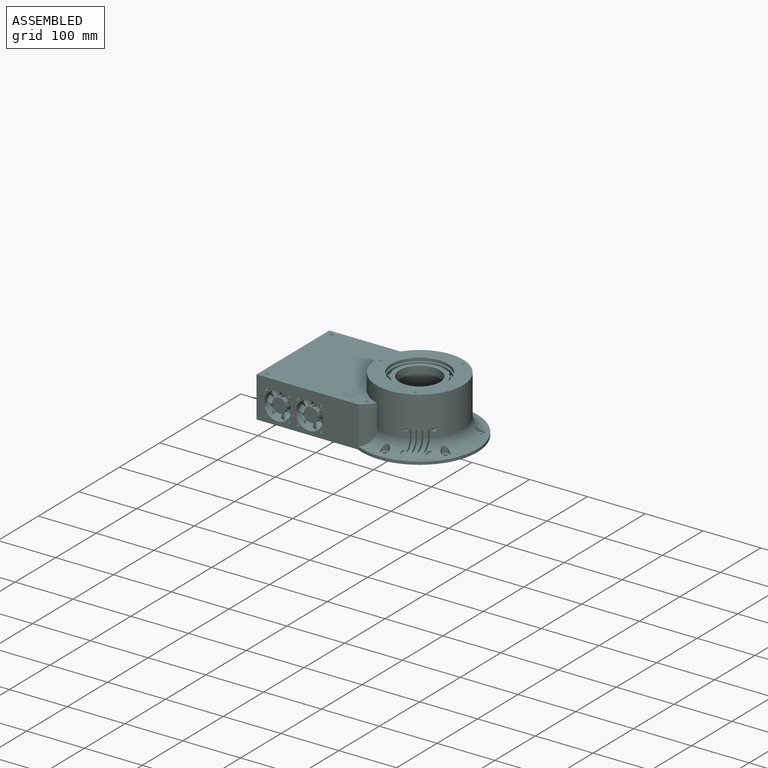
[diagram: assembled view]
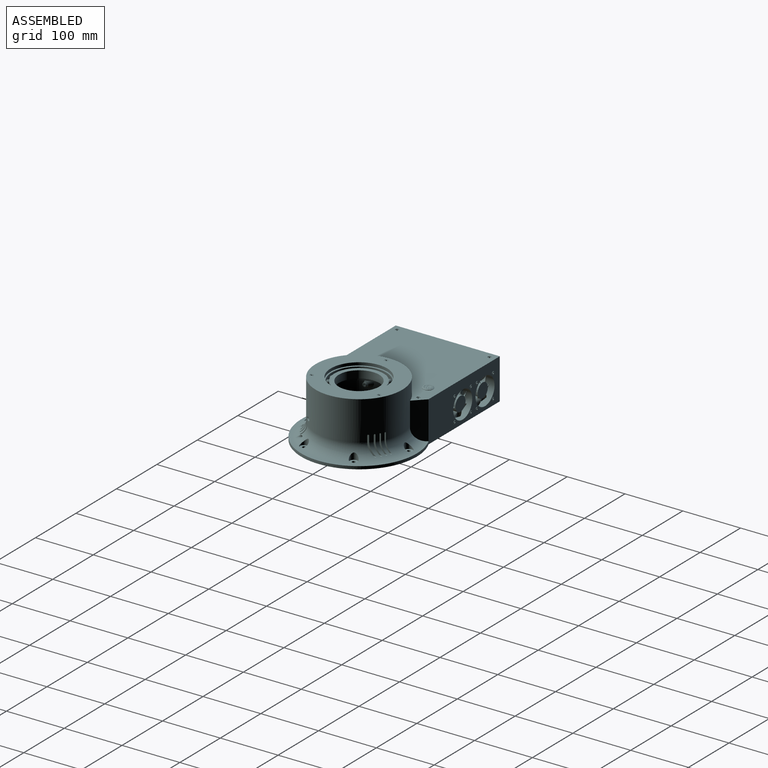
[diagram: assembled view, second angle]
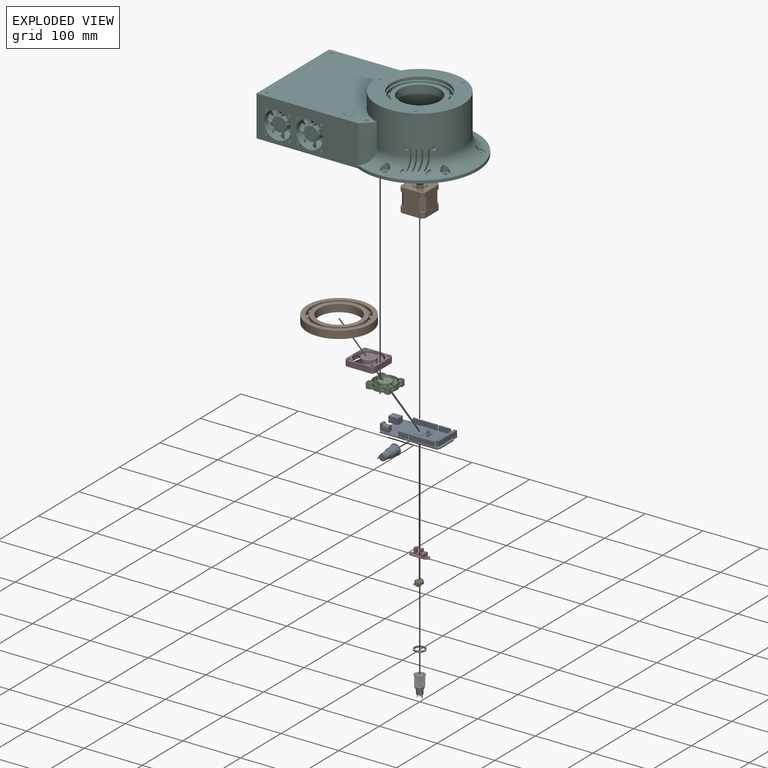
[diagram: exploded view]
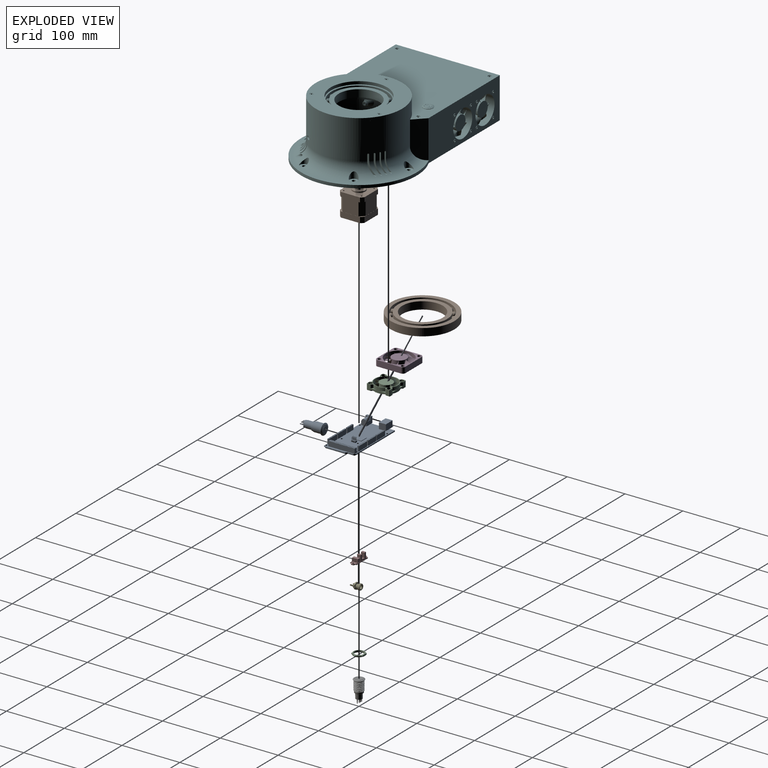
[diagram: exploded view, second angle]
FCSTD DOCUMENT  (FreeCAD 0.19R24276 (Git))
Label: AssemblyBase
License: All rights reserved
LicenseURL: http://en.wikipedia.org/wiki/All_rights_reserved
objects: Part::FeaturePython×83, PartDesign::CoordinateSystem×20, App::Link×20, PartDesign::Line×16, Part::Feature×15, App::Part×11, App::DocumentObjectGroup×6, Part::Compound×3, Sketcher::SketchObject×2, PartDesign::Pad×2, Part::Sphere×1, App::FeaturePython×1
note: 144 computed B-rep shape members (.brp) not serialized (recipe doc carries the construction recipe, not evaluated geometry)
EXTERNAL_REF file=BaseBot.FCStd obj=LCS_Bot
EXTERNAL_REF file=BaseBot.FCStd obj=Body002
EXTERNAL_REF file=BaseBot.FCStd obj=LCS_Top001
EXTERNAL_REF file=BaseTop.FCStd obj=LCS_Bot
EXTERNAL_REF file=BaseTop.FCStd obj=Body
EXTERNAL_REF file=BaseBearingFix.FCStd obj=LCS_Bot
EXTERNAL_REF file=BaseTop.FCStd obj=LCS_Top
EXTERNAL_REF file=BaseBearingFix.FCStd obj=Body
EXTERNAL_REF file=BaseBoxBody.FCStd obj=LCS_Bot
EXTERNAL_REF file=BaseBoxBody.FCStd obj=Body002
EXTERNAL_REF file=BaseBoxBody.FCStd obj=LCS_Top
EXTERNAL_REF file=BaseBoxCover.FCStd obj=LCS_Bot
EXTERNAL_REF file=BaseBoxCover.FCStd obj=Body
EXTERNAL_REF file=BaseBot.FCStd obj=LCS_Stepper
EXTERNAL_REF file=Art1GearMotor.FCStd obj=LCS_Art1GearMotor
EXTERNAL_REF file=Art1GearMotor.FCStd obj=Body
EXTERNAL_REF file=BaseBot.FCStd obj=LCS_OpticSensor
EXTERNAL_REF file=BaseBot.FCStd obj=LCS_Fan001
EXTERNAL_REF file=BaseBoxCover.FCStd obj=LCS_PushButton1
EXTERNAL_REF file=BaseBoxCover.FCStd obj=LCS_PushButton2
EXTERNAL_REF file=BaseBoxBody.FCStd obj=LCS_Fan1
EXTERNAL_REF file=BaseBoxBody.FCStd obj=LCS_Fan2
EXTERNAL_REF file=BaseBoxBody.FCStd obj=LCS_Fan3
EXTERNAL_REF file=BaseBoxBody.FCStd obj=LCS_Fan4
EXTERNAL_REF file=BaseBoxBody.FCStd obj=LCS_Arduino
EXTERNAL_REF file=BaseBoxBody.FCStd obj=LCS_DCJAck
EXTERNAL_REF file=BaseBoxBody.FCStd obj=HoleAxis_15
EXTERNAL_REF file=BaseBoxBody.FCStd obj=HoleAxis_18
EXTERNAL_REF file=BaseBoxBody.FCStd obj=HoleAxis_16
EXTERNAL_REF file=BaseBoxBody.FCStd obj=HoleAxis_17
EXTERNAL_REF file=BaseBoxBody.FCStd obj=HoleAxis_19
EXTERNAL_REF file=BaseBoxBody.FCStd obj=HoleAxis_20
EXTERNAL_REF file=BaseBoxBody.FCStd obj=HoleAxis_22
EXTERNAL_REF file=BaseBoxBody.FCStd obj=HoleAxis_21
EXTERNAL_REF file=BaseBoxBody.FCStd obj=HoleAxis_14
EXTERNAL_REF file=BaseBoxBody.FCStd obj=HoleAxis_13
EXTERNAL_REF file=BaseBoxBody.FCStd obj=HoleAxis_8
EXTERNAL_REF file=BaseBoxBody.FCStd obj=HoleAxis_7
EXTERNAL_REF file=BaseBoxBody.FCStd obj=HoleAxis_9
EXTERNAL_REF file=BaseBoxBody.FCStd obj=HoleAxis_10
EXTERNAL_REF file=BaseBoxBody.FCStd obj=HoleAxis_12
EXTERNAL_REF file=BaseBoxBody.FCStd obj=HoleAxis_11
EXTERNAL_REF file=BaseBoxBody.FCStd obj=HoleAxis_28
EXTERNAL_REF file=BaseBoxBody.FCStd obj=HoleAxis_27
EXTERNAL_REF file=BaseBoxBody.FCStd obj=HoleAxis_26
EXTERNAL_REF file=BaseBoxBody.FCStd obj=HoleAxis_25
EXTERNAL_REF file=BaseBoxBody.FCStd obj=HoleAxis_24
EXTERNAL_REF file=BaseBoxBody.FCStd obj=HoleAxis_23
EXTERNAL_REF file=BaseBoxBody.FCStd obj=HoleAxis_1
EXTERNAL_REF file=BaseBoxBody.FCStd obj=HoleAxis_6
EXTERNAL_REF file=BaseBoxCover.FCStd obj=HoleAxis_2
EXTERNAL_REF file=BaseBoxCover.FCStd obj=HoleAxis_3
EXTERNAL_REF file=BaseBoxCover.FCStd obj=HoleAxis_4
EXTERNAL_REF file=BaseBoxCover.FCStd obj=HoleAxis_1
EXTERNAL_REF file=BaseBoxBody.FCStd obj=HoleAxis_2
EXTERNAL_REF file=BaseBoxBody.FCStd obj=HoleAxis_3
EXTERNAL_REF file=BaseBoxBody.FCStd obj=HoleAxis_4
EXTERNAL_REF file=BaseBoxBody.FCStd obj=HoleAxis_5
EXTERNAL_REF file=BaseBot.FCStd obj=HoleAxis_2
EXTERNAL_REF file=BaseBot.FCStd obj=HoleAxis_3
EXTERNAL_REF file=BaseBot.FCStd obj=HoleAxis_4
EXTERNAL_REF file=BaseBot.FCStd obj=HoleAxis_1
EXTERNAL_REF file=BaseBot.FCStd obj=HoleAxis_13
EXTERNAL_REF file=BaseBot.FCStd obj=HoleAxis_12
EXTERNAL_REF file=BaseBot.FCStd obj=HoleAxis_11
EXTERNAL_REF file=BaseBot.FCStd obj=HoleAxis_9
EXTERNAL_REF file=BaseBot.FCStd obj=HoleAxis_10
EXTERNAL_REF file=Art1GearMotor.FCStd obj=HoleAxis_2
EXTERNAL_REF file=Art1GearMotor.FCStd obj=HoleAxis_1
EXTERNAL_REF file=BaseBearingFix.FCStd obj=HoleAxis_2
EXTERNAL_REF file=BaseBot.FCStd obj=HoleAxis_6
EXTERNAL_REF file=BaseBot.FCStd obj=HoleAxis_7
EXTERNAL_REF file=BaseBot.FCStd obj=HoleAxis_5
EXTERNAL_REF file=BaseBot.FCStd obj=HoleAxis_8
EXTERNAL_REF file=BaseBot.FCStd obj=HoleAxis_14
EXTERNAL_REF file=BaseBot.FCStd obj=HoleAxis_15
EXTERNAL_REF file=BaseBot.FCStd obj=HoleAxis_16
EXTERNAL_REF file=BaseBot.FCStd obj=HoleAxis_17
EXTERNAL_REF file=BaseBearingFix.FCStd obj=HoleAxis_3
EXTERNAL_REF file=BaseBearingFix.FCStd obj=HoleAxis_1

FEATURE [Part::Feature] Clone002001  label="fan-50x50mm"
FEATURE [PartDesign::CoordinateSystem] LCS_0
  AttacherType = Attacher::AttachEngine3D
  MapMode = 2
  Support = -> [X_Axis001]
FEATURE [PartDesign::CoordinateSystem] LCS_Fan
  AttacherType = Attacher::AttachEngine3D
  MapMode = 45
  Placement = pos=(0,0,10) rot=(0,0,1;0rad)
  Support = -> [Clone002001]
FEATURE [PartDesign::CoordinateSystem] LCS_0001
  AttacherType = Attacher::AttachEngine3D
  MapMode = 2
  Support = -> [X_Axis002]
FEATURE [Part::Feature] Part__Feature001  label="fan-40x40mm"
FEATURE [PartDesign::CoordinateSystem] LCS_Fan001
  AttacherType = Attacher::AttachEngine3D
  AttachmentOffset = pos=(0,0,-2.21) rot=(0,0,1;0rad)
  MapMode = 45
  Placement = pos=(-5e-16,5e-16,-4e-16) rot=(0,0,1;0rad)
  Support = -> [Part__Feature001]
FEATURE [PartDesign::CoordinateSystem] LCS_0002
  AttacherType = Attacher::AttachEngine3D
  MapMode = 2
  Support = -> [X_Axis003]
FEATURE [Part::Feature] Part__Feature020  label="Metal LED Illuminated Latching 16mm Power Push Button ON-OFF Switch 12V002"
FEATURE [Part::Feature] Part__Feature024  label="Metal LED Illuminated Latching 16mm Power Push Button ON-OFF Switch 12V006"
FEATURE [Part::Feature] Part__Feature021  label="Metal LED Illuminated Latching 16mm Power Push Button ON-OFF Switch 12V003"
FEATURE [Part::Feature] Part__Feature023  label="Metal LED Illuminated Latching 16mm Power Push Button ON-OFF Switch 12V005"
FEATURE [Part::Feature] Part__Feature025  label="Metal LED Illuminated Latching 16mm Power Push Button ON-OFF Switch 12V007"
FEATURE [Part::Feature] Part__Feature022  label="Metal LED Illuminated Latching 16mm Power Push Button ON-OFF Switch 12V004"
FEATURE [Part::Compound] Compound007  label="16mmOnOffButton"
  Links = -> [Part__Feature023,Part__Feature021,Part__Feature024,Part__Feature025,Part__Feature022,Part__Feature020]
FEATURE [App::Part] OnOffButton
  Group = -> [LCS_0002,Part__Feature022,Part__Feature020,Part__Feature023,Part__Feature025,Part__Feature024,Part__Feature021,Compound007]
  Origin = -> Origin003
FEATURE [PartDesign::CoordinateSystem] LCS_0003
  AttacherType = Attacher::AttachEngine3D
  MapMode = 2
  Support = -> [X_Axis004]
FEATURE [Part::Feature] Part__Feature027  label="phobya power switch body"
FEATURE [Part::Feature] Part__Feature028  label="pin power switch"
  Placement = pos=(0,-32.6,0) rot=(0,0,1;3.14159rad)
FEATURE [Part::Compound] Compound006  label="16mmPushButton"
  Links = -> [Part__Feature028,Part__Feature027]
FEATURE [App::Part] ResetButton
  Group = -> [LCS_0003,Part__Feature028,Part__Feature027,Compound006]
  Origin = -> Origin004
FEATURE [PartDesign::CoordinateSystem] LCS_0004
  AttacherType = Attacher::AttachEngine3D
  MapMode = 2
  Support = -> [X_Axis005]
FEATURE [Part::Feature] Part__Feature029  label="16mmNut"
FEATURE [PartDesign::CoordinateSystem] LCS_Washer  label="LCS_Nut"
  AttacherType = Attacher::AttachEngine3D
  MapMode = 11
  Placement = pos=(9e-16,0,1.5) rot=(0,0,1;1.5708rad)
  Support = -> [Part__Feature029]
FEATURE [App::Part] Washer  label="NutButton"
  Group = -> [LCS_0004,Part__Feature029,LCS_Washer]
  Origin = -> Origin005
FEATURE [Part::Feature] Part__Feature  label="Arduino-mega"
FEATURE [PartDesign::CoordinateSystem] LCS_0005
  AttacherType = Attacher::AttachEngine3D
  MapMode = 2
  Support = -> [X_Axis006]
FEATURE [PartDesign::CoordinateSystem] LCS_ArduinoMega
  AttacherType = Attacher::AttachEngine3D
  MapMode = 45
  Placement = pos=(3.0379,-0.047,0) rot=(0,0,1;1.53932rad)
  Support = -> [Part__Feature]
FEATURE [PartDesign::CoordinateSystem] LCS_0006
  AttacherType = Attacher::AttachEngine3D
  MapMode = 2
  Support = -> [X_Axis007]
FEATURE [Part::Feature] Part__Feature030  label="DJ Jack 2,1mm panel mount"
  Placement = pos=(0,-8,0) rot=(0,0,1;0rad)
FEATURE [App::Part] JackDC
  Group = -> [LCS_0006,Part__Feature030]
  Origin = -> Origin007
FEATURE [PartDesign::CoordinateSystem] LCS_0007
  AttacherType = Attacher::AttachEngine3D
  MapMode = 2
  Support = -> [X_Axis008]
FEATURE [Part::Feature] Fusion155  label="OptoSwitch002"
FEATURE [PartDesign::CoordinateSystem] LCS_OpticSensor
  AttacherType = Attacher::AttachEngine3D
  MapMode = 45
  Placement = pos=(7.5e-15,-1e-16,0) rot=(0,0,1;1.5708rad)
  Support = -> [Fusion155]
FEATURE [PartDesign::CoordinateSystem] LCS_0008
  AttacherType = Attacher::AttachEngine3D
  MapMode = 2
  Support = -> [X_Axis009]
FEATURE [Part::Feature] Part__Feature031  label="Nema-17-motor-40mm-final"
FEATURE [PartDesign::CoordinateSystem] LCS_Stepper_Nema17x40
  AttacherType = Attacher::AttachEngine3D
  MapMode = 45
  Placement = pos=(7.5e-15,0,0) rot=(0,0,1;0rad)
  Support = -> [Part__Feature031]
FEATURE [PartDesign::CoordinateSystem] LCS_0009
  AttacherType = Attacher::AttachEngine3D
  MapMode = 2
  Support = -> [X_Axis010]
FEATURE [Part::Sphere] Sphere
  Angle1 = -90
  Angle2 = 90
  Angle3 = 360
  AttacherType = Attacher::AttachEngine3D
  MapMode = 0
  Placement = pos=(45,0,6.5) rot=(0,0,1;0rad)
  Radius = 3.5
FEATURE [Sketcher::SketchObject] Sketch011
  AttacherType = Attacher::AttachEnginePlane
  FullyConstrained = false
  MapMode = 5
  sketch-geometry (2):
    g0: Circle CenterX=0 CenterY=0 CenterZ=0 NormalX=0 NormalY=0 NormalZ=1 AngleXU=0 Radius=55
    g1: Circle CenterX=0 CenterY=0 CenterZ=0 NormalX=0 NormalY=0 NormalZ=1 AngleXU=0 Radius=47.5
  constraints (4):
    c: Coincident(g0,g-1)
    c: Coincident(g1,g-1)
    c: Radius(g0) = 55
    c: Radius(g1) = 47.5
FEATURE [PartDesign::Pad] Pad001
  AllowMultiFace = false
  Direction = (1,1,1)
  Length = 13
  Length2 = 100
  Midplane = false
  Offset = 0
  Profile = -> Sketch011
  Refine = true
  Reversed = false
  Type = 0
  UseCustomVector = false
FEATURE [Sketcher::SketchObject] Sketch012
  AttacherType = Attacher::AttachEnginePlane
  FullyConstrained = false
  MapMode = 5
  sketch-geometry (2):
    g0: Circle CenterX=0 CenterY=0 CenterZ=0 NormalX=0 NormalY=0 NormalZ=1 AngleXU=0 Radius=35
    g1: Circle CenterX=0 CenterY=0 CenterZ=0 NormalX=0 NormalY=0 NormalZ=1 AngleXU=0 Radius=42.5
  constraints (4):
    c: Coincident(g0,g-1)
    c: Coincident(g1,g-1)
    c: Radius(g0) = 35
    c: Radius(g1) = 42.5
FEATURE [PartDesign::Pad] Pad002
  AllowMultiFace = false
  Direction = (1,1,1)
  Length = 13
  Length2 = 100
  Midplane = false
  Offset = 0
  Profile = -> Sketch012
  Refine = true
  Reversed = false
  Type = 0
  UseCustomVector = false
FEATURE [Part::FeaturePython] Array  # WARN: FeaturePython — macro-defined, semantics opaque (R4)
  Angle = 360
  ArrayType = 1
  Axis = (0,0,1)
  Base = -> Sphere
  Center = (0,0,0)
  Fuse = false
  IntervalAxis = (0,0,0)
  IntervalX = (1,0,0)
  IntervalY = (0,1,0)
  IntervalZ = (0,0,0)
  NumberPolar = 19
  NumberX = 2
  NumberY = 2
  NumberZ = 1
FEATURE [Part::Compound] Compound  label="Bearing 16014zz"
  Links = -> [Pad002,Pad001,Array]
FEATURE [App::Part] Bearing_16014zz
  Group = -> [LCS_0009,Pad002,Pad001,Sphere,Array,Sketch012,Sketch011,Compound]
  Origin = -> Origin010
FEATURE [App::DocumentObjectGroup] Group  label="Bearings"
  Group = -> [Bearing_16014zz]
FEATURE [PartDesign::CoordinateSystem] LCS_Gear2  label="LCS_Gear"
  AttacherType = Attacher::AttachEngine3D
  AttachmentOffset = pos=(0,0,1.9) rot=(0,0,1;0rad)
  MapMode = 11
  Placement = pos=(0,0,44) rot=(0,0,1;1.5708rad)
  Support = -> [Part__Feature031]
FEATURE [App::Part] Stepper_Nema17x40
  Group = -> [LCS_0008,Part__Feature031,LCS_Stepper_Nema17x40,LCS_Gear2]
  Origin = -> Origin009
FEATURE [PartDesign::Line] HoleAxis_1
  AttacherType = Attacher::AttachEngineLine
  Length = 5.07264
  MapMode = 19
  Placement = pos=(20.2,-20.2,0) rot=(0,0,1;3.14159rad)
  ResizeMode = 1
  Support = -> [Clone002001]
FEATURE [PartDesign::Line] HoleAxis_2
  AttacherType = Attacher::AttachEngineLine
  Length = 5.07264
  MapMode = 19
  Placement = pos=(-20.2,-20.2,0) rot=(0,0,1;1.5708rad)
  ResizeMode = 1
  Support = -> [Clone002001]
FEATURE [PartDesign::Line] HoleAxis_3
  AttacherType = Attacher::AttachEngineLine
  Length = 5.07264
  MapMode = 19
  Placement = pos=(-20.2,20.2,0) rot=(0,0,1;0rad)
  ResizeMode = 1
  Support = -> [Clone002001]
FEATURE [PartDesign::Line] HoleAxis_4
  AttacherType = Attacher::AttachEngineLine
  Length = 5.07264
  MapMode = 19
  Placement = pos=(20.2,20.2,0) rot=(0,0,1;4.71239rad)
  ResizeMode = 1
  Support = -> [Clone002001]
FEATURE [App::Part] Fan_50x50
  Group = -> [LCS_0,Clone002001,LCS_Fan,HoleAxis_1,HoleAxis_2,HoleAxis_3,HoleAxis_4]
  Origin = -> Origin001
FEATURE [PartDesign::Line] HoleAxis_5
  AttacherType = Attacher::AttachEngineLine
  Length = 6.05899
  MapMode = 19
  Placement = pos=(15.9948,15.9948,6.76) rot=(0,0,1;4.71239rad)
  ResizeMode = 1
  Support = -> [Part__Feature001]
FEATURE [PartDesign::Line] HoleAxis_6
  AttacherType = Attacher::AttachEngineLine
  Length = 6.05899
  MapMode = 19
  Placement = pos=(15.9948,-15.9948,6.76) rot=(0,0,1;3.14159rad)
  ResizeMode = 1
  Support = -> [Part__Feature001]
FEATURE [PartDesign::Line] HoleAxis_7
  AttacherType = Attacher::AttachEngineLine
  Length = 6.05899
  MapMode = 19
  Placement = pos=(-15.9948,-15.9948,6.76) rot=(0,0,1;1.5708rad)
  ResizeMode = 1
  Support = -> [Part__Feature001]
FEATURE [PartDesign::Line] HoleAxis_8
  AttacherType = Attacher::AttachEngineLine
  Length = 6.05899
  MapMode = 19
  Placement = pos=(-15.9948,15.9948,6.76) rot=(0,0,1;0rad)
  ResizeMode = 1
  Support = -> [Part__Feature001]
FEATURE [App::Part] Fan_40x40
  Group = -> [LCS_0001,Part__Feature001,LCS_Fan001,HoleAxis_5,HoleAxis_6,HoleAxis_7,HoleAxis_8]
  Origin = -> Origin002
FEATURE [App::DocumentObjectGroup] Group001  label="Fans"
  Group = -> [Fan_50x50,Fan_40x40]
FEATURE [PartDesign::Line] HoleAxis_9
  AttacherType = Attacher::AttachEngineLine
  Length = 4.50902
  MapMode = 19
  Placement = pos=(39.234,24.084,2) rot=(0,0,1;0rad)
  ResizeMode = 1
  Support = -> [Part__Feature]
FEATURE [PartDesign::Line] HoleAxis_10
  AttacherType = Attacher::AttachEngineLine
  Length = 4.50902
  MapMode = 19
  Placement = pos=(15.1,8.844,2) rot=(0,0,1;0rad)
  ResizeMode = 1
  Support = -> [Part__Feature]
FEATURE [PartDesign::Line] HoleAxis_11
  AttacherType = Attacher::AttachEngineLine
  Length = 4.50902
  MapMode = 19
  Placement = pos=(15.1,-19.1,2) rot=(0,0,1;0rad)
  ResizeMode = 1
  Support = -> [Part__Feature]
FEATURE [PartDesign::Line] HoleAxis_12
  AttacherType = Attacher::AttachEngineLine
  Length = 4.50902
  MapMode = 19
  Placement = pos=(-35.6964,24.084,2) rot=(0,0,1;0rad)
  ResizeMode = 1
  Support = -> [Part__Feature]
FEATURE [PartDesign::Line] HoleAxis_13
  AttacherType = Attacher::AttachEngineLine
  Length = 4.50902
  MapMode = 19
  Placement = pos=(-36.966,-24.176,2) rot=(0,0,1;0rad)
  ResizeMode = 1
  Support = -> [Part__Feature]
FEATURE [PartDesign::Line] HoleAxis_14
  AttacherType = Attacher::AttachEngineLine
  Length = 4.2272
  MapMode = 19
  Placement = pos=(-14,0,1.5) rot=(0,0,1;0rad)
  ResizeMode = 1
  Support = -> [Fusion155]
FEATURE [PartDesign::Line] HoleAxis_15
  AttacherType = Attacher::AttachEngineLine
  Length = 4.2272
  MapMode = 19
  Placement = pos=(14,0,1.5) rot=(0,0,1;0rad)
  ResizeMode = 1
  Support = -> [Fusion155]
FEATURE [App::Part] OpticSensor
  Group = -> [LCS_0007,Fusion155,LCS_OpticSensor,HoleAxis_14,HoleAxis_15]
  Origin = -> Origin008
FEATURE [PartDesign::CoordinateSystem] LCS_Origin
  AttacherType = Attacher::AttachEngine3D
  MapMode = 2
  Support = -> [X_Axis]
FEATURE [App::DocumentObjectGroup] Constraints
FEATURE [App::FeaturePython] Variables  # WARN: FeaturePython — macro-defined, semantics opaque (R4)
FEATURE [App::Link] BaseBot_BaseBot
  AssemblyType = Asm4EE
  AttachedBy = #LCS_Bot
  AttachedTo = Parent Assembly#LCS_Origin
  ElementCount = 0
  LinkTransform = false
  Scale = 1
  ScaleVector = (1,1,1)
  ShowElement = true
  expr: Placement = LCS_Origin.Placement * AttachmentOffset * BaseBot#LCS_Bot.Placement ^ -1
FEATURE [App::Link] BaseTop_BaseTop
  AssemblyType = Asm4EE
  AttachedBy = #LCS_Bot
  AttachedTo = BaseBot_BaseBot#LCS_Top001
  AttachmentOffset = pos=(0,0,0) rot=(0,0,1;-1.0472rad)
  ElementCount = 0
  LinkPlacement = pos=(0,1.45e-14,65.5) rot=(0,0,-1;5.23599rad)
  LinkTransform = false
  Placement = pos=(0,1.45e-14,65.5) rot=(0,0,-1;5.23599rad)
  Scale = 1
  ScaleVector = (1,1,1)
  ShowElement = true
  expr: Placement = BaseBot_BaseBot.Placement * BaseBot#LCS_Top001.Placement * AttachmentOffset * BaseTop#LCS_Bot.Placement ^ -1
FEATURE [App::Link] BaseBearingFix_BaseBearingFix
  AssemblyType = Asm4EE
  AttachedBy = #LCS_Bot
  AttachedTo = BaseTop_BaseTop#LCS_Top
  AttachmentOffset = pos=(0,0,0) rot=(-0.707107,-0.707107,0;3.14159rad)
  ElementCount = 0
  LinkPlacement = pos=(6e-16,1.8e-14,93) rot=(0,0,1;4.18879rad)
  LinkTransform = false
  Placement = pos=(6e-16,1.8e-14,93) rot=(0,0,1;4.18879rad)
  Scale = 1
  ScaleVector = (1,1,1)
  ShowElement = true
  expr: Placement = BaseTop_BaseTop.Placement * BaseTop#LCS_Top.Placement * AttachmentOffset * BaseBearingFix#LCS_Bot.Placement ^ -1
FEATURE [App::Link] BaseBoxBody_BaseBoxBody
  AssemblyType = Asm4EE
  AttachedBy = #LCS_Bot
  AttachedTo = BaseBot_BaseBot#LCS_Bot
  AttachmentOffset = pos=(0,0,0) rot=(0,0,1;3.14159rad)
  ElementCount = 0
  LinkPlacement = pos=(0,0,0) rot=(0,0,1;3.14159rad)
  LinkTransform = false
  Placement = pos=(0,0,0) rot=(0,0,1;3.14159rad)
  Scale = 1
  ScaleVector = (1,1,1)
  ShowElement = true
  expr: Placement = BaseBot_BaseBot.Placement * BaseBot#LCS_Bot.Placement * AttachmentOffset * BaseBoxBody#LCS_Bot.Placement ^ -1
FEATURE [App::Link] BaseBoxCover_BaseBoxCover
  AssemblyType = Asm4EE
  AttachedBy = #LCS_Bot
  AttachedTo = BaseBoxBody_BaseBoxBody#LCS_Top
  ElementCount = 0
  LinkPlacement = pos=(2.84e-14,5.78e-14,65.5) rot=(0,0,1;3.14159rad)
  LinkTransform = false
  Placement = pos=(2.84e-14,5.78e-14,65.5) rot=(0,0,1;3.14159rad)
  Scale = 1
  ScaleVector = (1,1,1)
  ShowElement = true
  expr: Placement = BaseBoxBody_BaseBoxBody.Placement * BaseBoxBody#LCS_Top.Placement * AttachmentOffset * BaseBoxCover#LCS_Bot.Placement ^ -1
FEATURE [App::Link] Stepper_Nema17x40001
  AssemblyType = Asm4EE
  AttachedBy = #LCS_Stepper_Nema17x40
  AttachedTo = BaseBot_BaseBot#LCS_Stepper
  ElementCount = 0
  LinkPlacement = pos=(40,4e-15,5) rot=(0,0,1;0rad)
  LinkTransform = false
  Placement = pos=(40,4e-15,5) rot=(0,0,1;0rad)
  Scale = 1
  ScaleVector = (1,1,1)
  ShowElement = true
  expr: Placement = BaseBot_BaseBot.Placement * BaseBot#LCS_Stepper.Placement * AttachmentOffset * LCS_Stepper_Nema17x40.Placement ^ -1
FEATURE [App::Link] Art1GearMotor_Art1GearMotor
  AssemblyType = Asm4EE
  AttachedBy = #LCS_Art1GearMotor
  AttachedTo = Stepper_Nema17x40001#LCS_Gear2
  AttachmentOffset = pos=(0,0,0) rot=(1,0,0;3.14159rad)
  ElementCount = 0
  LinkPlacement = pos=(40,5.17e-14,59) rot=(0,0,1;3.14159rad)
  LinkTransform = false
  Placement = pos=(40,5.17e-14,59) rot=(0,0,1;3.14159rad)
  Scale = 1
  ScaleVector = (1,1,1)
  ShowElement = true
  expr: Placement = Stepper_Nema17x40001.Placement * LCS_Gear2.Placement * AttachmentOffset * Art1GearMotor#LCS_Art1GearMotor.Placement ^ -1
FEATURE [App::Link] OpticSensor001
  AssemblyType = Asm4EE
  AttachedBy = #LCS_OpticSensor
  AttachedTo = BaseBot_BaseBot#LCS_OpticSensor
  AttachmentOffset = pos=(0,0,0) rot=(0,0,1;3.14159rad)
  ElementCount = 0
  LinkPlacement = pos=(-2.2,51,45) rot=(0,0,1;1.5708rad)
  LinkTransform = false
  Placement = pos=(-2.2,51,45) rot=(0,0,1;1.5708rad)
  Scale = 1
  ScaleVector = (1,1,1)
  ShowElement = true
  expr: Placement = BaseBot_BaseBot.Placement * BaseBot#LCS_OpticSensor.Placement * AttachmentOffset * LCS_OpticSensor.Placement ^ -1
FEATURE [App::Link] Fan_40x40001
  AssemblyType = Asm4EE
  AttachedBy = #LCS_Fan001
  AttachedTo = BaseBot_BaseBot#LCS_Fan001
  ElementCount = 0
  LinkPlacement = pos=(42.5,-36,26) rot=(0,0.707107,0.707107;3.14159rad)
  LinkTransform = false
  Placement = pos=(42.5,-36,26) rot=(0,0.707107,0.707107;3.14159rad)
  Scale = 1
  ScaleVector = (1,1,1)
  ShowElement = true
  expr: Placement = BaseBot_BaseBot.Placement * BaseBot#LCS_Fan001.Placement * AttachmentOffset * LCS_Fan001.Placement ^ -1
FEATURE [App::Link] OnOffButton001
  AssemblyType = Asm4EE
  AttachedBy = #LCS_0002
  AttachedTo = BaseBoxCover_BaseBoxCover#LCS_PushButton1
  ElementCount = 0
  LinkPlacement = pos=(-74.4,67.5,70.5) rot=(0,0,1;4.71239rad)
  LinkTransform = false
  Placement = pos=(-74.4,67.5,70.5) rot=(0,0,1;4.71239rad)
  Scale = 1
  ScaleVector = (1,1,1)
  ShowElement = true
  expr: Placement = BaseBoxCover_BaseBoxCover.Placement * BaseBoxCover#LCS_PushButton1.Placement * AttachmentOffset * LCS_0002.Placement ^ -1
FEATURE [App::Link] ResetButton001
  AssemblyType = Asm4EE
  AttachedBy = #LCS_0003
  AttachedTo = BaseBoxCover_BaseBoxCover#LCS_PushButton2
  AttachmentOffset = pos=(0,0,0) rot=(1,0,0;1.5708rad)
  ElementCount = 0
  LinkPlacement = pos=(-74.4,-67.5,70.5) rot=(-0.57735,0.57735,0.57735;4.18879rad)
  LinkTransform = false
  Placement = pos=(-74.4,-67.5,70.5) rot=(-0.57735,0.57735,0.57735;4.18879rad)
  Scale = 1
  ScaleVector = (1,1,1)
  ShowElement = true
  expr: Placement = BaseBoxCover_BaseBoxCover.Placement * BaseBoxCover#LCS_PushButton2.Placement * AttachmentOffset * LCS_0003.Placement ^ -1
FEATURE [App::Link] Fan_50x50001
  AssemblyType = Asm4EE
  AttachedBy = #LCS_Fan
  AttachedTo = BaseBoxBody_BaseBoxBody#LCS_Fan1
  AttachmentOffset = pos=(0,0,0) rot=(0,1,0;3.14159rad)
  ElementCount = 0
  LinkPlacement = pos=(-127.9,75,30) rot=(0,-0.707107,-0.707107;3.14159rad)
  LinkTransform = false
  Placement = pos=(-127.9,75,30) rot=(0,-0.707107,-0.707107;3.14159rad)
  Scale = 1
  ScaleVector = (1,1,1)
  ShowElement = true
  expr: Placement = BaseBoxBody_BaseBoxBody.Placement * BaseBoxBody#LCS_Fan1.Placement * AttachmentOffset * LCS_Fan.Placement ^ -1
FEATURE [App::Link] Fan_50x50002
  AssemblyType = Asm4EE
  AttachedBy = #LCS_Fan
  AttachedTo = BaseBoxBody_BaseBoxBody#LCS_Fan2
  AttachmentOffset = pos=(0,0,0) rot=(1,0,0;3.14159rad)
  ElementCount = 0
  LinkPlacement = pos=(-182.9,75,30) rot=(-1,0,0;1.5708rad)
  LinkTransform = false
  Placement = pos=(-182.9,75,30) rot=(-1,0,0;1.5708rad)
  Scale = 1
  ScaleVector = (1,1,1)
  ShowElement = true
  expr: Placement = BaseBoxBody_BaseBoxBody.Placement * BaseBoxBody#LCS_Fan2.Placement * AttachmentOffset * LCS_Fan.Placement ^ -1
FEATURE [App::Link] Fan_50x50003
  AssemblyType = Asm4EE
  AttachedBy = #LCS_Fan
  AttachedTo = BaseBoxBody_BaseBoxBody#LCS_Fan3
  ElementCount = 0
  LinkPlacement = pos=(-127.9,-75,30) rot=(-1,0,0;4.71239rad)
  LinkTransform = false
  Placement = pos=(-127.9,-75,30) rot=(-1,0,0;4.71239rad)
  Scale = 1
  ScaleVector = (1,1,1)
  ShowElement = true
  expr: Placement = BaseBoxBody_BaseBoxBody.Placement * BaseBoxBody#LCS_Fan3.Placement * AttachmentOffset * LCS_Fan.Placement ^ -1
FEATURE [App::Link] Fan_50x50004
  AssemblyType = Asm4EE
  AttachedBy = #LCS_Fan
  AttachedTo = BaseBoxBody_BaseBoxBody#LCS_Fan4
  ElementCount = 0
  LinkPlacement = pos=(-182.9,-75,30) rot=(-1,0,0;4.71239rad)
  LinkTransform = false
  Placement = pos=(-182.9,-75,30) rot=(-1,0,0;4.71239rad)
  Scale = 1
  ScaleVector = (1,1,1)
  ShowElement = true
  expr: Placement = BaseBoxBody_BaseBoxBody.Placement * BaseBoxBody#LCS_Fan4.Placement * AttachmentOffset * LCS_Fan.Placement ^ -1
FEATURE [App::Link] ArduinoMega001
  AssemblyType = Asm4EE
  AttachedBy = #LCS_ArduinoMega
  AttachedTo = BaseBoxBody_BaseBoxBody#LCS_Arduino
  AttachmentOffset = pos=(0,0,2) rot=(0,0,1;3.14159rad)
  ElementCount = 0
  LinkPlacement = pos=(-160,-0.00116927,10) rot=(0,0,-1;6.28315rad)
  LinkTransform = false
  Placement = pos=(-160,-0.00116927,10) rot=(0,0,-1;6.28315rad)
  Scale = 1
  ScaleVector = (1,1,1)
  ShowElement = true
  expr: Placement = BaseBoxBody_BaseBoxBody.Placement * BaseBoxBody#LCS_Arduino.Placement * AttachmentOffset * LCS_ArduinoMega.Placement ^ -1
FEATURE [App::Link] JackDC001
  AssemblyType = Asm4EE
  AttachedBy = #LCS_0006
  AttachedTo = BaseBoxBody_BaseBoxBody#LCS_DCJAck
  AttachmentOffset = pos=(0,0,0) rot=(1,0,0;1.5708rad)
  ElementCount = 0
  LinkPlacement = pos=(-219.4,-46.5,17) rot=(-0.57735,0.57735,-0.57735;4.18879rad)
  LinkTransform = false
  Placement = pos=(-219.4,-46.5,17) rot=(-0.57735,0.57735,-0.57735;4.18879rad)
  Scale = 1
  ScaleVector = (1,1,1)
  ShowElement = true
  expr: Placement = BaseBoxBody_BaseBoxBody.Placement * BaseBoxBody#LCS_DCJAck.Placement * AttachmentOffset * LCS_0006.Placement ^ -1
FEATURE [Part::FeaturePython] Screw  label="M3x16-Screw"  # WARN: FeaturePython — macro-defined, semantics opaque (R4)
  AssemblyType = Asm4EE
  AttachedBy = Origin
  AttachedTo = BaseBoxBody_BaseBoxBody#HoleAxis_15
  Placement = pos=(-203.1,-87.5,50.2) rot=(1,0,0;1.5708rad)
  diameter = 4
  invert = false
  length = 6
  lengthCustom = 16
  matchOuter = false
  offset = 0
  thread = false
  type = 33
  expr: Placement = BaseBoxBody_BaseBoxBody.Placement * BaseBoxBody#HoleAxis_15.Placement * AttachmentOffset
FEATURE [Part::FeaturePython] Screw001  label="M3x16-Screw123"  # WARN: FeaturePython — macro-defined, semantics opaque (R4)
  AssemblyType = Asm4EE
  AttachedBy = Origin
  AttachedTo = BaseBoxBody_BaseBoxBody#HoleAxis_18
  Placement = pos=(-162.7,-87.5,50.2) rot=(1,0,0;1.5708rad)
  diameter = 4
  invert = false
  length = 6
  lengthCustom = 16
  matchOuter = false
  offset = 0
  thread = false
  type = 33
  expr: Placement = BaseBoxBody_BaseBoxBody.Placement * BaseBoxBody#HoleAxis_18.Placement * AttachmentOffset
FEATURE [Part::FeaturePython] Screw002  label="M3x16-Screw127"  # WARN: FeaturePython — macro-defined, semantics opaque (R4)
  AssemblyType = Asm4EE
  AttachedBy = Origin
  AttachedTo = BaseBoxBody_BaseBoxBody#HoleAxis_16
  Placement = pos=(-203.1,-87.5,9.8) rot=(1,0,0;1.5708rad)
  diameter = 4
  invert = false
  length = 6
  lengthCustom = 16
  matchOuter = false
  offset = 0
  thread = false
  type = 33
  expr: Placement = BaseBoxBody_BaseBoxBody.Placement * BaseBoxBody#HoleAxis_16.Placement * AttachmentOffset
FEATURE [Part::FeaturePython] Screw003  label="M3x16-Screw126"  # WARN: FeaturePython — macro-defined, semantics opaque (R4)
  AssemblyType = Asm4EE
  AttachedBy = Origin
  AttachedTo = BaseBoxBody_BaseBoxBody#HoleAxis_17
  Placement = pos=(-162.7,-87.5,9.8) rot=(1,0,0;1.5708rad)
  diameter = 4
  invert = false
  length = 6
  lengthCustom = 16
  matchOuter = false
  offset = 0
  thread = false
  type = 33
  expr: Placement = BaseBoxBody_BaseBoxBody.Placement * BaseBoxBody#HoleAxis_17.Placement * AttachmentOffset
FEATURE [Part::FeaturePython] Screw004  label="M3x16-Screw115"  # WARN: FeaturePython — macro-defined, semantics opaque (R4)
  AssemblyType = Asm4EE
  AttachedBy = Origin
  AttachedTo = BaseBoxBody_BaseBoxBody#HoleAxis_19
  Placement = pos=(-148.1,-87.5,50.2) rot=(1,0,0;1.5708rad)
  diameter = 4
  invert = false
  length = 6
  lengthCustom = 16
  matchOuter = false
  offset = 0
  thread = false
  type = 33
  expr: Placement = BaseBoxBody_BaseBoxBody.Placement * BaseBoxBody#HoleAxis_19.Placement * AttachmentOffset
FEATURE [Part::FeaturePython] Screw005  label="M3x16-Screw117"  # WARN: FeaturePython — macro-defined, semantics opaque (R4)
  AssemblyType = Asm4EE
  AttachedBy = Origin
  AttachedTo = BaseBoxBody_BaseBoxBody#HoleAxis_20
  Placement = pos=(-148.1,-87.5,9.8) rot=(1,0,0;1.5708rad)
  diameter = 4
  invert = false
  length = 6
  lengthCustom = 16
  matchOuter = false
  offset = 0
  thread = false
  type = 33
  expr: Placement = BaseBoxBody_BaseBoxBody.Placement * BaseBoxBody#HoleAxis_20.Placement * AttachmentOffset
FEATURE [Part::FeaturePython] Screw006  label="M3x16-Screw118"  # WARN: FeaturePython — macro-defined, semantics opaque (R4)
  AssemblyType = Asm4EE
  AttachedBy = Origin
  AttachedTo = BaseBoxBody_BaseBoxBody#HoleAxis_22
  Placement = pos=(-107.7,-87.5,9.8) rot=(1,0,0;1.5708rad)
  diameter = 4
  invert = false
  length = 6
  lengthCustom = 16
  matchOuter = false
  offset = 0
  thread = false
  type = 33
  expr: Placement = BaseBoxBody_BaseBoxBody.Placement * BaseBoxBody#HoleAxis_22.Placement * AttachmentOffset
FEATURE [Part::FeaturePython] Screw007  label="M3x16-Screw114"  # WARN: FeaturePython — macro-defined, semantics opaque (R4)
  AssemblyType = Asm4EE
  AttachedBy = Origin
  AttachedTo = BaseBoxBody_BaseBoxBody#HoleAxis_21
  Placement = pos=(-107.7,-87.5,50.2) rot=(1,0,0;1.5708rad)
  diameter = 4
  invert = false
  length = 6
  lengthCustom = 16
  matchOuter = false
  offset = 0
  thread = false
  type = 33
  expr: Placement = BaseBoxBody_BaseBoxBody.Placement * BaseBoxBody#HoleAxis_21.Placement * AttachmentOffset
FEATURE [Part::FeaturePython] Screw008  label="M3x16-Screw124"  # WARN: FeaturePython — macro-defined, semantics opaque (R4)
  AssemblyType = Asm4EE
  AttachedBy = Origin
  AttachedTo = BaseBoxBody_BaseBoxBody#HoleAxis_14
  AttachmentOffset = pos=(0,0,0) rot=(-1,0,0;3.14159rad)
  Placement = pos=(-107.7,87.5,9.8) rot=(-1,0,0;1.5708rad)
  diameter = 4
  invert = false
  length = 6
  lengthCustom = 16
  matchOuter = false
  offset = 0
  thread = false
  type = 33
  expr: Placement = BaseBoxBody_BaseBoxBody.Placement * BaseBoxBody#HoleAxis_14.Placement * AttachmentOffset
FEATURE [Part::FeaturePython] Screw009  label="M3x16-Screw120"  # WARN: FeaturePython — macro-defined, semantics opaque (R4)
  AssemblyType = Asm4EE
  AttachedBy = Origin
  AttachedTo = BaseBoxBody_BaseBoxBody#HoleAxis_13
  AttachmentOffset = pos=(0,0,0) rot=(1,0,0;3.14159rad)
  Placement = pos=(-148.1,87.5,9.8) rot=(-1,0,0;1.5708rad)
  diameter = 4
  invert = false
  length = 6
  lengthCustom = 16
  matchOuter = false
  offset = 0
  thread = false
  type = 33
  expr: Placement = BaseBoxBody_BaseBoxBody.Placement * BaseBoxBody#HoleAxis_13.Placement * AttachmentOffset
FEATURE [Part::FeaturePython] Screw010  label="M3x16-Screw122"  # WARN: FeaturePython — macro-defined, semantics opaque (R4)
  AssemblyType = Asm4EE
  AttachedBy = Origin
  AttachedTo = BaseBoxBody_BaseBoxBody#HoleAxis_8
  AttachmentOffset = pos=(0,0,0) rot=(1,0,0;3.14159rad)
  Placement = pos=(-148.1,87.5,50.2) rot=(-1,0,0;1.5708rad)
  diameter = 4
  invert = false
  length = 6
  lengthCustom = 16
  matchOuter = false
  offset = 0
  thread = false
  type = 33
  expr: Placement = BaseBoxBody_BaseBoxBody.Placement * BaseBoxBody#HoleAxis_8.Placement * AttachmentOffset
FEATURE [Part::FeaturePython] Screw011  label="M3x16-Screw116"  # WARN: FeaturePython — macro-defined, semantics opaque (R4)
  AssemblyType = Asm4EE
  AttachedBy = Origin
  AttachedTo = BaseBoxBody_BaseBoxBody#HoleAxis_7
  AttachmentOffset = pos=(0,0,0) rot=(1,0,0;3.14159rad)
  Placement = pos=(-107.7,87.5,50.2) rot=(-1,0,0;1.5708rad)
  diameter = 4
  invert = false
  length = 6
  lengthCustom = 16
  matchOuter = false
  offset = 0
  thread = false
  type = 33
  expr: Placement = BaseBoxBody_BaseBoxBody.Placement * BaseBoxBody#HoleAxis_7.Placement * AttachmentOffset
FEATURE [Part::FeaturePython] Screw012  label="M3x16-Screw121"  # WARN: FeaturePython — macro-defined, semantics opaque (R4)
  AssemblyType = Asm4EE
  AttachedBy = Origin
  AttachedTo = BaseBoxBody_BaseBoxBody#HoleAxis_9
  AttachmentOffset = pos=(0,0,0) rot=(1,0,0;3.14159rad)
  Placement = pos=(-162.7,87.5,50.2) rot=(-1,0,0;1.5708rad)
  diameter = 4
  invert = false
  length = 6
  lengthCustom = 16
  matchOuter = false
  offset = 0
  thread = false
  type = 33
  expr: Placement = BaseBoxBody_BaseBoxBody.Placement * BaseBoxBody#HoleAxis_9.Placement * AttachmentOffset
FEATURE [Part::FeaturePython] Screw013  label="M3x16-Screw119"  # WARN: FeaturePython — macro-defined, semantics opaque (R4)
  AssemblyType = Asm4EE
  AttachedBy = Origin
  AttachedTo = BaseBoxBody_BaseBoxBody#HoleAxis_10
  AttachmentOffset = pos=(0,0,0) rot=(1,0,0;3.14159rad)
  Placement = pos=(-203.1,87.5,50.2) rot=(-1,0,0;1.5708rad)
  diameter = 4
  invert = false
  length = 6
  lengthCustom = 16
  matchOuter = false
  offset = 0
  thread = false
  type = 33
  expr: Placement = BaseBoxBody_BaseBoxBody.Placement * BaseBoxBody#HoleAxis_10.Placement * AttachmentOffset
FEATURE [Part::FeaturePython] Screw014  label="M3x16-Screw125"  # WARN: FeaturePython — macro-defined, semantics opaque (R4)
  AssemblyType = Asm4EE
  AttachedBy = Origin
  AttachedTo = BaseBoxBody_BaseBoxBody#HoleAxis_12
  AttachmentOffset = pos=(0,0,0) rot=(1,0,0;3.14159rad)
  Placement = pos=(-162.7,87.5,9.8) rot=(-1,0,0;1.5708rad)
  diameter = 4
  invert = false
  length = 6
  lengthCustom = 16
  matchOuter = false
  offset = 0
  thread = false
  type = 33
  expr: Placement = BaseBoxBody_BaseBoxBody.Placement * BaseBoxBody#HoleAxis_12.Placement * AttachmentOffset
FEATURE [Part::FeaturePython] Screw015  label="M3x16-Screw128"  # WARN: FeaturePython — macro-defined, semantics opaque (R4)
  AssemblyType = Asm4EE
  AttachedBy = Origin
  AttachedTo = BaseBoxBody_BaseBoxBody#HoleAxis_11
  AttachmentOffset = pos=(0,0,0) rot=(1,0,0;3.14159rad)
  Placement = pos=(-203.1,87.5,9.8) rot=(-1,0,0;1.5708rad)
  diameter = 4
  invert = false
  length = 6
  lengthCustom = 16
  matchOuter = false
  offset = 0
  thread = false
  type = 33
  expr: Placement = BaseBoxBody_BaseBoxBody.Placement * BaseBoxBody#HoleAxis_11.Placement * AttachmentOffset
FEATURE [Part::FeaturePython] Nut  label="M3-Nut"  # WARN: FeaturePython — macro-defined, semantics opaque (R4)
  AssemblyType = Asm4EE
  AttachedBy = Origin
  AttachedTo = Fan_50x50002#HoleAxis_2
  AttachmentOffset = pos=(0,0,0) rot=(1,0,0;3.14159rad)
  Placement = pos=(-203.1,75,50.2) rot=(-0.57735,-0.57735,0.57735;4.18879rad)
  diameter = 4
  invert = false
  matchOuter = false
  offset = 0
  thread = false
  type = 7
  expr: Placement = Fan_50x50002.Placement * HoleAxis_2.Placement * AttachmentOffset
FEATURE [Part::FeaturePython] Nut001  label="M3-Nut181"  # WARN: FeaturePython — macro-defined, semantics opaque (R4)
  AssemblyType = Asm4EE
  AttachedBy = Origin
  AttachedTo = Fan_50x50002#HoleAxis_1
  AttachmentOffset = pos=(0,0,0) rot=(1,0,0;3.14159rad)
  Placement = pos=(-162.7,75,50.2) rot=(0,-0.707107,0.707107;3.14159rad)
  diameter = 4
  invert = false
  matchOuter = false
  offset = 0
  thread = false
  type = 7
  expr: Placement = Fan_50x50002.Placement * HoleAxis_1.Placement * AttachmentOffset
FEATURE [Part::FeaturePython] Nut002  label="M3-Nut182"  # WARN: FeaturePython — macro-defined, semantics opaque (R4)
  AssemblyType = Asm4EE
  AttachedBy = Origin
  AttachedTo = Fan_50x50002#HoleAxis_3
  AttachmentOffset = pos=(0,0,0) rot=(1,0,0;3.14159rad)
  Placement = pos=(-203.1,75,9.8) rot=(1,0,0;1.5708rad)
  diameter = 4
  invert = false
  matchOuter = false
  offset = 0
  thread = false
  type = 7
  expr: Placement = Fan_50x50002.Placement * HoleAxis_3.Placement * AttachmentOffset
FEATURE [Part::FeaturePython] Nut003  label="M3-Nut177"  # WARN: FeaturePython — macro-defined, semantics opaque (R4)
  AssemblyType = Asm4EE
  AttachedBy = Origin
  AttachedTo = Fan_50x50002#HoleAxis_4
  AttachmentOffset = pos=(0,0,0) rot=(1,0,0;3.14159rad)
  Placement = pos=(-162.7,75,9.8) rot=(0.57735,-0.57735,0.57735;2.0944rad)
  diameter = 4
  invert = false
  matchOuter = false
  offset = 0
  thread = false
  type = 7
  expr: Placement = Fan_50x50002.Placement * HoleAxis_4.Placement * AttachmentOffset
FEATURE [Part::FeaturePython] Nut004  label="M3-Nut180"  # WARN: FeaturePython — macro-defined, semantics opaque (R4)
  AssemblyType = Asm4EE
  AttachedBy = Origin
  AttachedTo = Fan_50x50001#HoleAxis_4
  AttachmentOffset = pos=(0,0,0) rot=(1,0,0;3.14159rad)
  Placement = pos=(-148.1,75,50.2) rot=(0.57735,0.57735,-0.57735;2.0944rad)
  diameter = 4
  invert = false
  matchOuter = false
  offset = 0
  thread = false
  type = 7
  expr: Placement = Fan_50x50001.Placement * HoleAxis_4.Placement * AttachmentOffset
FEATURE [Part::FeaturePython] Nut005  label="M3-Nut178"  # WARN: FeaturePython — macro-defined, semantics opaque (R4)
  AssemblyType = Asm4EE
  AttachedBy = Origin
  AttachedTo = Fan_50x50001#HoleAxis_1
  AttachmentOffset = pos=(0,0,0) rot=(1,0,0;3.14159rad)
  Placement = pos=(-148.1,75,9.8) rot=(1,0,0;1.5708rad)
  diameter = 4
  invert = false
  matchOuter = false
  offset = 0
  thread = false
  type = 7
  expr: Placement = Fan_50x50001.Placement * HoleAxis_1.Placement * AttachmentOffset
FEATURE [Part::FeaturePython] Nut006  label="M3-Nut179"  # WARN: FeaturePython — macro-defined, semantics opaque (R4)
  AssemblyType = Asm4EE
  AttachedBy = Origin
  AttachedTo = Fan_50x50001#HoleAxis_3
  AttachmentOffset = pos=(0,0,0) rot=(1,0,0;3.14159rad)
  Placement = pos=(-107.7,75,50.2) rot=(0,0.707107,-0.707107;3.14159rad)
  diameter = 4
  invert = false
  matchOuter = false
  offset = 0
  thread = false
  type = 7
  expr: Placement = Fan_50x50001.Placement * HoleAxis_3.Placement * AttachmentOffset
FEATURE [Part::FeaturePython] Nut007  label="M3-Nut176"  # WARN: FeaturePython — macro-defined, semantics opaque (R4)
  AssemblyType = Asm4EE
  AttachedBy = Origin
  AttachedTo = Fan_50x50001#HoleAxis_2
  AttachmentOffset = pos=(0,0,0) rot=(1,0,0;3.14159rad)
  Placement = pos=(-107.7,75,9.8) rot=(0.57735,-0.57735,0.57735;2.0944rad)
  diameter = 4
  invert = false
  matchOuter = false
  offset = 0
  thread = false
  type = 7
  expr: Placement = Fan_50x50001.Placement * HoleAxis_2.Placement * AttachmentOffset
FEATURE [Part::FeaturePython] Nut008  label="M3-Nut187"  # WARN: FeaturePython — macro-defined, semantics opaque (R4)
  AssemblyType = Asm4EE
  AttachedBy = Origin
  AttachedTo = Fan_50x50003#HoleAxis_4
  AttachmentOffset = pos=(0,0,0) rot=(1,0,0;3.14159rad)
  Placement = pos=(-107.7,-75,50.2) rot=(0.57735,-0.57735,-0.57735;4.18879rad)
  diameter = 4
  invert = false
  matchOuter = false
  offset = 0
  thread = false
  type = 7
  expr: Placement = Fan_50x50003.Placement * HoleAxis_4.Placement * AttachmentOffset
FEATURE [Part::FeaturePython] Nut009  label="M3-Nut175"  # WARN: FeaturePython — macro-defined, semantics opaque (R4)
  AssemblyType = Asm4EE
  AttachedBy = Origin
  AttachedTo = Fan_50x50003#HoleAxis_3
  AttachmentOffset = pos=(0,0,0) rot=(1,0,0;3.14159rad)
  Placement = pos=(-148.1,-75,50.2) rot=(-1,0,0;1.5708rad)
  diameter = 4
  invert = false
  matchOuter = false
  offset = 0
  thread = false
  type = 7
  expr: Placement = Fan_50x50003.Placement * HoleAxis_3.Placement * AttachmentOffset
FEATURE [Part::FeaturePython] Nut010  label="M3-Nut185"  # WARN: FeaturePython — macro-defined, semantics opaque (R4)
  AssemblyType = Asm4EE
  AttachedBy = Origin
  AttachedTo = Fan_50x50003#HoleAxis_1
  AttachmentOffset = pos=(0,0,0) rot=(1,0,0;3.14159rad)
  Placement = pos=(-107.7,-75,9.8) rot=(0,0.707107,0.707107;3.14159rad)
  diameter = 4
  invert = false
  matchOuter = false
  offset = 0
  thread = false
  type = 7
  expr: Placement = Fan_50x50003.Placement * HoleAxis_1.Placement * AttachmentOffset
FEATURE [Part::FeaturePython] Nut011  label="M3-Nut186"  # WARN: FeaturePython — macro-defined, semantics opaque (R4)
  AssemblyType = Asm4EE
  AttachedBy = Origin
  AttachedTo = Fan_50x50003#HoleAxis_2
  AttachmentOffset = pos=(0,0,0) rot=(1,0,0;3.14159rad)
  Placement = pos=(-148.1,-75,9.8) rot=(-0.57735,-0.57735,-0.57735;2.0944rad)
  diameter = 4
  invert = false
  matchOuter = false
  offset = 0
  thread = false
  type = 7
  expr: Placement = Fan_50x50003.Placement * HoleAxis_2.Placement * AttachmentOffset
FEATURE [Part::FeaturePython] Nut012  label="M3-Nut172"  # WARN: FeaturePython — macro-defined, semantics opaque (R4)
  AssemblyType = Asm4EE
  AttachedBy = Origin
  AttachedTo = Fan_50x50004#HoleAxis_4
  AttachmentOffset = pos=(0,0,0) rot=(1,0,0;3.14159rad)
  Placement = pos=(-162.7,-75,50.2) rot=(-0.57735,0.57735,0.57735;2.0944rad)
  diameter = 4
  invert = false
  matchOuter = false
  offset = 0
  thread = false
  type = 7
  expr: Placement = Fan_50x50004.Placement * HoleAxis_4.Placement * AttachmentOffset
FEATURE [Part::FeaturePython] Nut013  label="M3-Nut190"  # WARN: FeaturePython — macro-defined, semantics opaque (R4)
  AssemblyType = Asm4EE
  AttachedBy = Origin
  AttachedTo = Fan_50x50004#HoleAxis_3
  AttachmentOffset = pos=(0,0,0) rot=(1,0,0;3.14159rad)
  Placement = pos=(-203.1,-75,50.2) rot=(-1,0,0;1.5708rad)
  diameter = 4
  invert = false
  matchOuter = false
  offset = 0
  thread = false
  type = 7
  expr: Placement = Fan_50x50004.Placement * HoleAxis_3.Placement * AttachmentOffset
FEATURE [Part::FeaturePython] Nut014  label="M3-Nut174"  # WARN: FeaturePython — macro-defined, semantics opaque (R4)
  AssemblyType = Asm4EE
  AttachedBy = Origin
  AttachedTo = Fan_50x50004#HoleAxis_1
  AttachmentOffset = pos=(0,0,0) rot=(1,0,0;3.14159rad)
  Placement = pos=(-162.7,-75,9.8) rot=(0,0.707107,0.707107;3.14159rad)
  diameter = 4
  invert = false
  matchOuter = false
  offset = 0
  thread = false
  type = 7
  expr: Placement = Fan_50x50004.Placement * HoleAxis_1.Placement * AttachmentOffset
FEATURE [Part::FeaturePython] Nut015  label="M3-Nut191"  # WARN: FeaturePython — macro-defined, semantics opaque (R4)
  AssemblyType = Asm4EE
  AttachedBy = Origin
  AttachedTo = Fan_50x50004#HoleAxis_2
  AttachmentOffset = pos=(0,0,0) rot=(1,0,0;3.14159rad)
  Placement = pos=(-203.1,-75,9.8) rot=(-0.57735,-0.57735,-0.57735;2.0944rad)
  diameter = 4
  invert = false
  matchOuter = false
  offset = 0
  thread = false
  type = 7
  expr: Placement = Fan_50x50004.Placement * HoleAxis_2.Placement * AttachmentOffset
FEATURE [Part::FeaturePython] Screw016  label="M3x12-Screw"  # WARN: FeaturePython — macro-defined, semantics opaque (R4)
  AssemblyType = Asm4EE
  AttachedBy = Origin
  AttachedTo = ArduinoMega001#HoleAxis_16
  Placement = pos=(-114.419,-24.1794,12) rot=(0,0,1;3.9e-05rad)
  diameter = 4
  invert = false
  length = 4
  lengthCustom = 12
  matchOuter = false
  offset = 0
  thread = false
  type = 33
  expr: Placement = ArduinoMega001.Placement * HoleAxis_16.Placement * AttachmentOffset
FEATURE [Part::FeaturePython] Screw017  label="M3x12-Screw065"  # WARN: FeaturePython — macro-defined, semantics opaque (R4)
  AssemblyType = Asm4EE
  AttachedBy = Origin
  AttachedTo = ArduinoMega001#HoleAxis_9
  Placement = pos=(-120.767,24.0844,12) rot=(0,0,1;3.9e-05rad)
  diameter = 4
  invert = false
  length = 4
  lengthCustom = 12
  matchOuter = false
  offset = 0
  thread = false
  type = 33
  expr: Placement = ArduinoMega001.Placement * HoleAxis_9.Placement * AttachmentOffset
FEATURE [Part::FeaturePython] Screw018  label="M3x12-Screw066"  # WARN: FeaturePython — macro-defined, semantics opaque (R4)
  AssemblyType = Asm4EE
  AttachedBy = Origin
  AttachedTo = ArduinoMega001#HoleAxis_10
  Placement = pos=(-144.9,8.84342,12) rot=(0,0,1;3.9e-05rad)
  diameter = 4
  invert = false
  length = 4
  lengthCustom = 12
  matchOuter = false
  offset = 0
  thread = false
  type = 33
  expr: Placement = ArduinoMega001.Placement * HoleAxis_10.Placement * AttachmentOffset
FEATURE [Part::FeaturePython] Screw019  label="M3x12-Screw061"  # WARN: FeaturePython — macro-defined, semantics opaque (R4)
  AssemblyType = Asm4EE
  AttachedBy = Origin
  AttachedTo = ArduinoMega001#HoleAxis_11
  Placement = pos=(-144.899,-19.1006,12) rot=(0,0,1;3.9e-05rad)
  diameter = 4
  invert = false
  length = 4
  lengthCustom = 12
  matchOuter = false
  offset = 0
  thread = false
  type = 33
  expr: Placement = ArduinoMega001.Placement * HoleAxis_11.Placement * AttachmentOffset
FEATURE [Part::FeaturePython] Screw020  label="M3x12-Screw062"  # WARN: FeaturePython — macro-defined, semantics opaque (R4)
  AssemblyType = Asm4EE
  AttachedBy = Origin
  AttachedTo = ArduinoMega001#HoleAxis_12
  Placement = pos=(-195.697,24.0814,12) rot=(0,0,1;3.9e-05rad)
  diameter = 4
  invert = false
  length = 4
  lengthCustom = 12
  matchOuter = false
  offset = 0
  thread = false
  type = 33
  expr: Placement = ArduinoMega001.Placement * HoleAxis_12.Placement * AttachmentOffset
FEATURE [Part::FeaturePython] Screw021  label="M3x12-Screw067"  # WARN: FeaturePython — macro-defined, semantics opaque (R4)
  AssemblyType = Asm4EE
  AttachedBy = Origin
  AttachedTo = ArduinoMega001#HoleAxis_13
  Placement = pos=(-196.965,-24.1786,12) rot=(0,0,1;3.9e-05rad)
  diameter = 4
  invert = false
  length = 4
  lengthCustom = 12
  matchOuter = false
  offset = 0
  thread = false
  type = 33
  expr: Placement = ArduinoMega001.Placement * HoleAxis_13.Placement * AttachmentOffset
FEATURE [PartDesign::Line] HoleAxis_16
  AttacherType = Attacher::AttachEngineLine
  Length = 4.50902
  MapMode = 19
  Placement = pos=(45.58,-24.18,2) rot=(0,0,1;0rad)
  ResizeMode = 1
  Support = -> [Part__Feature]
FEATURE [App::Part] ArduinoMega
  Group = -> [LCS_0005,Part__Feature,LCS_ArduinoMega,HoleAxis_9,HoleAxis_10,HoleAxis_11,HoleAxis_12,HoleAxis_13,HoleAxis_16]
  Origin = -> Origin006
FEATURE [App::DocumentObjectGroup] Group002  label="Electronics"
  Group = -> [OnOffButton,ResetButton,Washer,ArduinoMega,JackDC,OpticSensor,Stepper_Nema17x40]
FEATURE [App::DocumentObjectGroup] Parts
  Group = -> [Group001,Group002,Group]
FEATURE [Part::FeaturePython] Nut016  label="M3-Nut151"  # WARN: FeaturePython — macro-defined, semantics opaque (R4)
  AssemblyType = Asm4EE
  AttachedBy = Origin
  AttachedTo = BaseBoxBody_BaseBoxBody#HoleAxis_28
  AttachmentOffset = pos=(0,0,0) rot=(1,0,0;3.14159rad)
  Placement = pos=(-196.966,-24.1801,4) rot=(0,1,0;3.14159rad)
  diameter = 4
  invert = false
  matchOuter = false
  offset = 0
  thread = false
  type = 7
  expr: Placement = BaseBoxBody_BaseBoxBody.Placement * BaseBoxBody#HoleAxis_28.Placement * AttachmentOffset
FEATURE [Part::FeaturePython] Nut017  label="M3-Nut143"  # WARN: FeaturePython — macro-defined, semantics opaque (R4)
  AssemblyType = Asm4EE
  AttachedBy = Origin
  AttachedTo = BaseBoxBody_BaseBoxBody#HoleAxis_27
  AttachmentOffset = pos=(0,0,0) rot=(1,0,0;3.14159rad)
  Placement = pos=(-195.696,24.084,4) rot=(0,1,0;3.14159rad)
  diameter = 4
  invert = false
  matchOuter = false
  offset = 0
  thread = false
  type = 7
  expr: Placement = BaseBoxBody_BaseBoxBody.Placement * BaseBoxBody#HoleAxis_27.Placement * AttachmentOffset
FEATURE [Part::FeaturePython] Nut018  label="M3-Nut124"  # WARN: FeaturePython — macro-defined, semantics opaque (R4)
  AssemblyType = Asm4EE
  AttachedBy = Origin
  AttachedTo = BaseBoxBody_BaseBoxBody#HoleAxis_26
  AttachmentOffset = pos=(0,0,0) rot=(1,0,0;3.14159rad)
  Placement = pos=(-144.9,8.844,4) rot=(0,1,0;3.14159rad)
  diameter = 4
  invert = false
  matchOuter = false
  offset = 0
  thread = false
  type = 7
  expr: Placement = BaseBoxBody_BaseBoxBody.Placement * BaseBoxBody#HoleAxis_26.Placement * AttachmentOffset
FEATURE [Part::FeaturePython] Nut019  label="M3-Nut145"  # WARN: FeaturePython — macro-defined, semantics opaque (R4)
  AssemblyType = Asm4EE
  AttachedBy = Origin
  AttachedTo = BaseBoxBody_BaseBoxBody#HoleAxis_25
  AttachmentOffset = pos=(0,0,0) rot=(1,0,0;3.14159rad)
  Placement = pos=(-144.9,-19.1,4) rot=(0,1,0;3.14159rad)
  diameter = 4
  invert = false
  matchOuter = false
  offset = 0
  thread = false
  type = 7
  expr: Placement = BaseBoxBody_BaseBoxBody.Placement * BaseBoxBody#HoleAxis_25.Placement * AttachmentOffset
FEATURE [Part::FeaturePython] Nut020  label="M3-Nut146"  # WARN: FeaturePython — macro-defined, semantics opaque (R4)
  AssemblyType = Asm4EE
  AttachedBy = Origin
  AttachedTo = BaseBoxBody_BaseBoxBody#HoleAxis_24
  AttachmentOffset = pos=(0,0,0) rot=(1,0,0;3.14159rad)
  Placement = pos=(-114.42,-24.1801,4) rot=(0,1,0;3.14159rad)
  diameter = 4
  invert = false
  matchOuter = false
  offset = 0
  thread = false
  type = 7
  expr: Placement = BaseBoxBody_BaseBoxBody.Placement * BaseBoxBody#HoleAxis_24.Placement * AttachmentOffset
FEATURE [Part::FeaturePython] Nut021  label="M3-Nut147"  # WARN: FeaturePython — macro-defined, semantics opaque (R4)
  AssemblyType = Asm4EE
  AttachedBy = Origin
  AttachedTo = BaseBoxBody_BaseBoxBody#HoleAxis_23
  AttachmentOffset = pos=(0,0,0) rot=(1,0,0;3.14159rad)
  Placement = pos=(-120.766,24.084,4) rot=(0,1,0;3.14159rad)
  diameter = 4
  invert = false
  matchOuter = false
  offset = 0
  thread = false
  type = 7
  expr: Placement = BaseBoxBody_BaseBoxBody.Placement * BaseBoxBody#HoleAxis_23.Placement * AttachmentOffset
FEATURE [App::Link] NutButton  label="NutButton001"
  AssemblyType = Asm4EE
  AttachedBy = #LCS_Washer
  AttachedTo = BaseBoxCover_BaseBoxCover#LCS_PushButton1
  AttachmentOffset = pos=(0,0,-5) rot=(0,0,1;0rad)
  ElementCount = 0
  LinkPlacement = pos=(-74.4,67.5,64) rot=(0,0,1;3.14159rad)
  LinkTransform = false
  Placement = pos=(-74.4,67.5,64) rot=(0,0,1;3.14159rad)
  Scale = 1
  ScaleVector = (1,1,1)
  ShowElement = true
  expr: Placement = BaseBoxCover_BaseBoxCover.Placement * BaseBoxCover#LCS_PushButton1.Placement * AttachmentOffset * LCS_Washer.Placement ^ -1
FEATURE [App::Link] NutButton001  label="NutButton002"
  AssemblyType = Asm4EE
  AttachedBy = #LCS_Washer
  AttachedTo = BaseBoxCover_BaseBoxCover#LCS_PushButton2
  AttachmentOffset = pos=(0,0,-5) rot=(0,0,1;0rad)
  ElementCount = 0
  LinkPlacement = pos=(-74.4,-67.5,64) rot=(0,0,1;3.14159rad)
  LinkTransform = false
  Placement = pos=(-74.4,-67.5,64) rot=(0,0,1;3.14159rad)
  Scale = 1
  ScaleVector = (1,1,1)
  ShowElement = true
  expr: Placement = BaseBoxCover_BaseBoxCover.Placement * BaseBoxCover#LCS_PushButton2.Placement * AttachmentOffset * LCS_Washer.Placement ^ -1
FEATURE [Part::FeaturePython] Nut023  label="M3-Nut150"  # WARN: FeaturePython — macro-defined, semantics opaque (R4)
  AssemblyType = Asm4EE
  AttachedBy = Origin
  AttachedTo = BaseBoxBody_BaseBoxBody#HoleAxis_1
  Placement = pos=(-39.4,75,60.15) rot=(0,0,1;3.14159rad)
  diameter = 4
  invert = false
  matchOuter = false
  offset = 0
  thread = false
  type = 7
  expr: Placement = BaseBoxBody_BaseBoxBody.Placement * BaseBoxBody#HoleAxis_1.Placement * AttachmentOffset
FEATURE [Part::FeaturePython] Nut024  label="M3-Nut144"  # WARN: FeaturePython — macro-defined, semantics opaque (R4)
  AssemblyType = Asm4EE
  AttachedBy = Origin
  AttachedTo = BaseBoxBody_BaseBoxBody#HoleAxis_6
  Placement = pos=(-39.4,-75,60.15) rot=(0,0,1;3.14159rad)
  diameter = 4
  invert = false
  matchOuter = false
  offset = 0
  thread = false
  type = 7
  expr: Placement = BaseBoxBody_BaseBoxBody.Placement * BaseBoxBody#HoleAxis_6.Placement * AttachmentOffset
FEATURE [Part::FeaturePython] Screw023  label="M3x12-Screw045"  # WARN: FeaturePython — macro-defined, semantics opaque (R4)
  AssemblyType = Asm4EE
  AttachedBy = Origin
  AttachedTo = BaseBoxCover_BaseBoxCover#HoleAxis_2
  Placement = pos=(-208.4,80,67) rot=(0,0,1;3.14159rad)
  diameter = 4
  invert = false
  length = 4
  lengthCustom = 12
  matchOuter = false
  offset = 0
  thread = false
  type = 33
  expr: Placement = BaseBoxCover_BaseBoxCover.Placement * BaseBoxCover#HoleAxis_2.Placement * AttachmentOffset
FEATURE [Part::FeaturePython] Screw024  label="M3x12-Screw049"  # WARN: FeaturePython — macro-defined, semantics opaque (R4)
  AssemblyType = Asm4EE
  AttachedBy = Origin
  AttachedTo = BaseBoxCover_BaseBoxCover#HoleAxis_3
  Placement = pos=(-208.4,-80,67) rot=(0,0,1;3.14159rad)
  diameter = 4
  invert = false
  length = 4
  lengthCustom = 12
  matchOuter = false
  offset = 0
  thread = false
  type = 33
  expr: Placement = BaseBoxCover_BaseBoxCover.Placement * BaseBoxCover#HoleAxis_3.Placement * AttachmentOffset
FEATURE [Part::FeaturePython] Screw025  label="M3x12-Screw053"  # WARN: FeaturePython — macro-defined, semantics opaque (R4)
  AssemblyType = Asm4EE
  AttachedBy = Origin
  AttachedTo = BaseBoxCover_BaseBoxCover#HoleAxis_4
  Placement = pos=(-39.4,-75,67) rot=(0,0,1;3.14159rad)
  diameter = 4
  invert = false
  length = 4
  lengthCustom = 12
  matchOuter = false
  offset = 0
  thread = false
  type = 33
  expr: Placement = BaseBoxCover_BaseBoxCover.Placement * BaseBoxCover#HoleAxis_4.Placement * AttachmentOffset
FEATURE [Part::FeaturePython] Screw026  label="M3x12-Screw052"  # WARN: FeaturePython — macro-defined, semantics opaque (R4)
  AssemblyType = Asm4EE
  AttachedBy = Origin
  AttachedTo = BaseBoxCover_BaseBoxCover#HoleAxis_1
  Placement = pos=(-39.4,75,67) rot=(0,0,1;3.14159rad)
  diameter = 4
  invert = false
  length = 4
  lengthCustom = 12
  matchOuter = false
  offset = 0
  thread = false
  type = 33
  expr: Placement = BaseBoxCover_BaseBoxCover.Placement * BaseBoxCover#HoleAxis_1.Placement * AttachmentOffset
FEATURE [Part::FeaturePython] Nut025  label="M4-Nut"  # WARN: FeaturePython — macro-defined, semantics opaque (R4)
  AssemblyType = Asm4EE
  AttachedBy = Origin
  AttachedTo = BaseBoxBody_BaseBoxBody#HoleAxis_2
  Placement = pos=(-77,30,55.75) rot=(0.57735,-0.57735,-0.57735;2.0944rad)
  diameter = 6
  invert = false
  matchOuter = false
  offset = 0
  thread = false
  type = 7
  expr: Placement = BaseBoxBody_BaseBoxBody.Placement * BaseBoxBody#HoleAxis_2.Placement * AttachmentOffset
FEATURE [Part::FeaturePython] Nut026  label="M4-Nut007"  # WARN: FeaturePython — macro-defined, semantics opaque (R4)
  AssemblyType = Asm4EE
  AttachedBy = Origin
  AttachedTo = BaseBoxBody_BaseBoxBody#HoleAxis_3
  Placement = pos=(-77,30,19.75) rot=(0.57735,-0.57735,-0.57735;2.0944rad)
  diameter = 6
  invert = false
  matchOuter = false
  offset = 0
  thread = false
  type = 7
  expr: Placement = BaseBoxBody_BaseBoxBody.Placement * BaseBoxBody#HoleAxis_3.Placement * AttachmentOffset
FEATURE [Part::FeaturePython] Nut027  label="M4-Nut009"  # WARN: FeaturePython — macro-defined, semantics opaque (R4)
  AssemblyType = Asm4EE
  AttachedBy = Origin
  AttachedTo = BaseBoxBody_BaseBoxBody#HoleAxis_4
  Placement = pos=(-77,-30,55.75) rot=(0.57735,-0.57735,-0.57735;2.0944rad)
  diameter = 6
  invert = false
  matchOuter = false
  offset = 0
  thread = false
  type = 7
  expr: Placement = BaseBoxBody_BaseBoxBody.Placement * BaseBoxBody#HoleAxis_4.Placement * AttachmentOffset
FEATURE [Part::FeaturePython] Nut028  label="M4-Nut008"  # WARN: FeaturePython — macro-defined, semantics opaque (R4)
  AssemblyType = Asm4EE
  AttachedBy = Origin
  AttachedTo = BaseBoxBody_BaseBoxBody#HoleAxis_5
  Placement = pos=(-77,-30,19.75) rot=(0.57735,-0.57735,-0.57735;2.0944rad)
  diameter = 6
  invert = false
  matchOuter = false
  offset = 0
  thread = false
  type = 7
  expr: Placement = BaseBoxBody_BaseBoxBody.Placement * BaseBoxBody#HoleAxis_5.Placement * AttachmentOffset
FEATURE [Part::FeaturePython] Screw027  label="M4x20-Screw"  # WARN: FeaturePython — macro-defined, semantics opaque (R4)
  AssemblyType = Asm4EE
  AttachedBy = Origin
  AttachedTo = BaseBot_BaseBot#HoleAxis_2
  Placement = pos=(-60,30,55.75) rot=(0.57735,0.57735,0.57735;2.0944rad)
  diameter = 5
  invert = false
  length = 11
  lengthCustom = 20
  matchOuter = false
  offset = 0
  thread = false
  type = 33
  expr: Placement = BaseBot_BaseBot.Placement * BaseBot#HoleAxis_2.Placement * AttachmentOffset
FEATURE [Part::FeaturePython] Screw028  label="M4x20-Screw004"  # WARN: FeaturePython — macro-defined, semantics opaque (R4)
  AssemblyType = Asm4EE
  AttachedBy = Origin
  AttachedTo = BaseBot_BaseBot#HoleAxis_3
  Placement = pos=(-60,30,19.75) rot=(0.57735,0.57735,0.57735;2.0944rad)
  diameter = 5
  invert = false
  length = 11
  lengthCustom = 20
  matchOuter = false
  offset = 0
  thread = false
  type = 33
  expr: Placement = BaseBot_BaseBot.Placement * BaseBot#HoleAxis_3.Placement * AttachmentOffset
FEATURE [Part::FeaturePython] Screw029  label="M4x20-Screw006"  # WARN: FeaturePython — macro-defined, semantics opaque (R4)
  AssemblyType = Asm4EE
  AttachedBy = Origin
  AttachedTo = BaseBot_BaseBot#HoleAxis_4
  Placement = pos=(-60,-30,19.75) rot=(0.57735,0.57735,0.57735;2.0944rad)
  diameter = 5
  invert = false
  length = 11
  lengthCustom = 20
  matchOuter = false
  offset = 0
  thread = false
  type = 33
  expr: Placement = BaseBot_BaseBot.Placement * BaseBot#HoleAxis_4.Placement * AttachmentOffset
FEATURE [Part::FeaturePython] Screw030  label="M4x20-Screw005"  # WARN: FeaturePython — macro-defined, semantics opaque (R4)
  AssemblyType = Asm4EE
  AttachedBy = Origin
  AttachedTo = BaseBot_BaseBot#HoleAxis_1
  Placement = pos=(-60,-30,55.75) rot=(0.57735,0.57735,0.57735;2.0944rad)
  diameter = 5
  invert = false
  length = 11
  lengthCustom = 20
  matchOuter = false
  offset = 0
  thread = false
  type = 33
  expr: Placement = BaseBot_BaseBot.Placement * BaseBot#HoleAxis_1.Placement * AttachmentOffset
FEATURE [Part::FeaturePython] Nut029  label="M3-Nut137"  # WARN: FeaturePython — macro-defined, semantics opaque (R4)
  AssemblyType = Asm4EE
  AttachedBy = Origin
  AttachedTo = BaseBot_BaseBot#HoleAxis_13
  Placement = pos=(-67.5,3.3e-14,59.15) rot=(0,0,1;3.14159rad)
  diameter = 4
  invert = false
  matchOuter = false
  offset = 0
  thread = false
  type = 7
  expr: Placement = BaseBot_BaseBot.Placement * BaseBot#HoleAxis_13.Placement * AttachmentOffset
FEATURE [Part::FeaturePython] Nut030  label="M3-Nut142"  # WARN: FeaturePython — macro-defined, semantics opaque (R4)
  AssemblyType = Asm4EE
  AttachedBy = Origin
  AttachedTo = BaseBot_BaseBot#HoleAxis_12
  Placement = pos=(33.75,-58.4567,59.15) rot=(0,0,-1;1.0472rad)
  diameter = 4
  invert = false
  matchOuter = false
  offset = 0
  thread = false
  type = 7
  expr: Placement = BaseBot_BaseBot.Placement * BaseBot#HoleAxis_12.Placement * AttachmentOffset
FEATURE [Part::FeaturePython] Nut031  label="M3-Nut138"  # WARN: FeaturePython — macro-defined, semantics opaque (R4)
  AssemblyType = Asm4EE
  AttachedBy = Origin
  AttachedTo = BaseBot_BaseBot#HoleAxis_11
  Placement = pos=(33.75,58.4567,59.15) rot=(0,0,1;1.0472rad)
  diameter = 4
  invert = false
  matchOuter = false
  offset = 0
  thread = false
  type = 7
  expr: Placement = BaseBot_BaseBot.Placement * BaseBot#HoleAxis_11.Placement * AttachmentOffset
FEATURE [Part::FeaturePython] Nut032  label="M3-Nut148"  # WARN: FeaturePython — macro-defined, semantics opaque (R4)
  AssemblyType = Asm4EE
  AttachedBy = Origin
  AttachedTo = BaseBot_BaseBot#HoleAxis_9
  Placement = pos=(-2.2,37,35.95) rot=(0,0,1;3.14159rad)
  diameter = 4
  invert = false
  matchOuter = false
  offset = 0
  thread = false
  type = 7
  expr: Placement = BaseBot_BaseBot.Placement * BaseBot#HoleAxis_9.Placement * AttachmentOffset
FEATURE [Part::FeaturePython] Nut033  label="M3-Nut122"  # WARN: FeaturePython — macro-defined, semantics opaque (R4)
  AssemblyType = Asm4EE
  AttachedBy = Origin
  AttachedTo = BaseBot_BaseBot#HoleAxis_10
  Placement = pos=(-2.2,65,35.95) rot=(0,0,1;3.14159rad)
  diameter = 4
  invert = false
  matchOuter = false
  offset = 0
  thread = false
  type = 7
  expr: Placement = BaseBot_BaseBot.Placement * BaseBot#HoleAxis_10.Placement * AttachmentOffset
FEATURE [Part::FeaturePython] Nut034  label="M3-Nut173"  # WARN: FeaturePython — macro-defined, semantics opaque (R4)
  AssemblyType = Asm4EE
  AttachedBy = Origin
  AttachedTo = Art1GearMotor_Art1GearMotor#HoleAxis_2
  AttachmentOffset = pos=(0,0,0) rot=(0.707107,0.707107,0;3.14159rad)
  Placement = pos=(35,5.1e-14,54) rot=(0.707107,0,-0.707107;3.14159rad)
  diameter = 4
  invert = false
  matchOuter = false
  offset = 0
  thread = false
  type = 7
  expr: Placement = Art1GearMotor_Art1GearMotor.Placement * Art1GearMotor#HoleAxis_2.Placement * AttachmentOffset
FEATURE [Part::FeaturePython] Screw031  label="M3x10-Screw"  # WARN: FeaturePython — macro-defined, semantics opaque (R4)
  AssemblyType = Asm4EE
  AttachedBy = Origin
  AttachedTo = Art1GearMotor_Art1GearMotor#HoleAxis_1
  AttachmentOffset = pos=(0,0,3) rot=(1,0,0;3.14159rad)
  Placement = pos=(28,5.6e-14,54) rot=(-0.57735,0.57735,0.57735;4.18879rad)
  diameter = 4
  invert = false
  length = 3
  lengthCustom = 10
  matchOuter = false
  offset = 0
  thread = false
  type = 33
  expr: Placement = Art1GearMotor_Art1GearMotor.Placement * Art1GearMotor#HoleAxis_1.Placement * AttachmentOffset
FEATURE [Part::FeaturePython] Nut035  label="M3-Nut183"  # WARN: FeaturePython — macro-defined, semantics opaque (R4)
  AssemblyType = Asm4EE
  AttachedBy = Origin
  AttachedTo = Fan_40x40001#HoleAxis_8
  Placement = pos=(58.4948,-29.24,41.9948) rot=(0,0.707107,0.707107;3.14159rad)
  diameter = 4
  invert = false
  matchOuter = false
  offset = 0
  thread = false
  type = 7
  expr: Placement = Fan_40x40001.Placement * HoleAxis_8.Placement * AttachmentOffset
FEATURE [Part::FeaturePython] Nut036  label="M3-Nut184"  # WARN: FeaturePython — macro-defined, semantics opaque (R4)
  AssemblyType = Asm4EE
  AttachedBy = Origin
  AttachedTo = Fan_40x40001#HoleAxis_5
  Placement = pos=(26.5052,-29.24,41.9948) rot=(0.57735,-0.57735,-0.57735;4.18879rad)
  diameter = 4
  invert = false
  matchOuter = false
  offset = 0
  thread = false
  type = 7
  expr: Placement = Fan_40x40001.Placement * HoleAxis_5.Placement * AttachmentOffset
FEATURE [Part::FeaturePython] Nut037  label="M3-Nut188"  # WARN: FeaturePython — macro-defined, semantics opaque (R4)
  AssemblyType = Asm4EE
  AttachedBy = Origin
  AttachedTo = Fan_40x40001#HoleAxis_7
  Placement = pos=(58.4948,-29.24,10.0052) rot=(-0.57735,-0.57735,-0.57735;2.0944rad)
  diameter = 4
  invert = false
  matchOuter = false
  offset = 0
  thread = false
  type = 7
  expr: Placement = Fan_40x40001.Placement * HoleAxis_7.Placement * AttachmentOffset
FEATURE [Part::FeaturePython] Nut038  label="M3-Nut189"  # WARN: FeaturePython — macro-defined, semantics opaque (R4)
  AssemblyType = Asm4EE
  AttachedBy = Origin
  AttachedTo = Fan_40x40001#HoleAxis_6
  Placement = pos=(26.5052,-29.24,10.0052) rot=(-1,0,0;1.5708rad)
  diameter = 4
  invert = false
  matchOuter = false
  offset = 0
  thread = false
  type = 7
  expr: Placement = Fan_40x40001.Placement * HoleAxis_6.Placement * AttachmentOffset
FEATURE [Part::FeaturePython] Screw032  label="M3x40-Screw"  # WARN: FeaturePython — macro-defined, semantics opaque (R4)
  AssemblyType = Asm4EE
  AttachedBy = Origin
  AttachedTo = BaseBearingFix_BaseBearingFix#HoleAxis_2
  Placement = pos=(33.75,-58.4567,95) rot=(0,0,1;2.0944rad)
  diameter = 4
  invert = false
  length = 10
  lengthCustom = 40
  matchOuter = false
  offset = 0
  thread = false
  type = 33
  expr: Placement = BaseBearingFix_BaseBearingFix.Placement * BaseBearingFix#HoleAxis_2.Placement * AttachmentOffset
FEATURE [Part::FeaturePython] Screw033  label="M3x12-Screw063"  # WARN: FeaturePython — macro-defined, semantics opaque (R4)
  AssemblyType = Asm4EE
  AttachedBy = Origin
  AttachedTo = OpticSensor001#HoleAxis_14
  Placement = pos=(-2.2,37,46.5) rot=(0,0,1;1.5708rad)
  diameter = 4
  invert = false
  length = 4
  lengthCustom = 12
  matchOuter = false
  offset = 0
  thread = false
  type = 33
  expr: Placement = OpticSensor001.Placement * HoleAxis_14.Placement * AttachmentOffset
FEATURE [Part::FeaturePython] Screw034  label="M3x12-Screw064"  # WARN: FeaturePython — macro-defined, semantics opaque (R4)
  AssemblyType = Asm4EE
  AttachedBy = Origin
  AttachedTo = OpticSensor001#HoleAxis_15
  Placement = pos=(-2.2,65,46.5) rot=(0,0,1;1.5708rad)
  diameter = 4
  invert = false
  length = 4
  lengthCustom = 12
  matchOuter = false
  offset = 0
  thread = false
  type = 33
  expr: Placement = OpticSensor001.Placement * HoleAxis_15.Placement * AttachmentOffset
FEATURE [Part::FeaturePython] Screw035  label="M3x14-Screw"  # WARN: FeaturePython — macro-defined, semantics opaque (R4)
  AssemblyType = Asm4EE
  AttachedBy = Origin
  AttachedTo = BaseBot_BaseBot#HoleAxis_6
  AttachmentOffset = pos=(0,0,0) rot=(1,0,0;3.14159rad)
  Placement = pos=(58.5,-40,42) rot=(1,0,0;1.5708rad)
  diameter = 4
  invert = false
  length = 5
  lengthCustom = 14
  matchOuter = false
  offset = 0
  thread = false
  type = 33
  expr: Placement = BaseBot_BaseBot.Placement * BaseBot#HoleAxis_6.Placement * AttachmentOffset
FEATURE [Part::FeaturePython] Screw036  label="M3x14-Screw001"  # WARN: FeaturePython — macro-defined, semantics opaque (R4)
  AssemblyType = Asm4EE
  AttachedBy = Origin
  AttachedTo = BaseBot_BaseBot#HoleAxis_7
  AttachmentOffset = pos=(0,0,0) rot=(1,0,0;3.14159rad)
  Placement = pos=(58.5,-40,10) rot=(1,0,0;1.5708rad)
  diameter = 4
  invert = false
  length = 5
  lengthCustom = 14
  matchOuter = false
  offset = 0
  thread = false
  type = 33
  expr: Placement = BaseBot_BaseBot.Placement * BaseBot#HoleAxis_7.Placement * AttachmentOffset
FEATURE [Part::FeaturePython] Screw037  label="M3x40-Screw012"  # WARN: FeaturePython — macro-defined, semantics opaque (R4)
  AssemblyType = Asm4EE
  AttachedBy = Origin
  AttachedTo = BaseBot_BaseBot#HoleAxis_5
  AttachmentOffset = pos=(0,0,0) rot=(1,0,0;3.14159rad)
  Placement = pos=(26.5,-66,42) rot=(1,0,0;1.5708rad)
  diameter = 4
  invert = false
  length = 10
  lengthCustom = 40
  matchOuter = false
  offset = 0
  thread = false
  type = 33
  expr: Placement = BaseBot_BaseBot.Placement * BaseBot#HoleAxis_5.Placement * AttachmentOffset
FEATURE [Part::FeaturePython] Screw038  label="M3x40-Screw014"  # WARN: FeaturePython — macro-defined, semantics opaque (R4)
  AssemblyType = Asm4EE
  AttachedBy = Origin
  AttachedTo = BaseBot_BaseBot#HoleAxis_8
  AttachmentOffset = pos=(0,0,0) rot=(1,0,0;3.14159rad)
  Placement = pos=(26.5,-66,10) rot=(1,0,0;1.5708rad)
  diameter = 4
  invert = false
  length = 10
  lengthCustom = 40
  matchOuter = false
  offset = 0
  thread = false
  type = 33
  expr: Placement = BaseBot_BaseBot.Placement * BaseBot#HoleAxis_8.Placement * AttachmentOffset
FEATURE [Part::FeaturePython] Screw039  label="M3x30-Screw009"  # WARN: FeaturePython — macro-defined, semantics opaque (R4)
  AssemblyType = Asm4EE
  AttachedBy = Origin
  AttachedTo = BaseBot_BaseBot#HoleAxis_14
  AttachmentOffset = pos=(0,0,-0.5) rot=(0,0,1;0rad)
  Placement = pos=(24.5,-15.5,3) rot=(1,0,0;3.14159rad)
  diameter = 4
  invert = false
  length = 9
  lengthCustom = 30
  matchOuter = false
  offset = 0
  thread = false
  type = 33
  expr: Placement = BaseBot_BaseBot.Placement * BaseBot#HoleAxis_14.Placement * AttachmentOffset
FEATURE [Part::FeaturePython] Screw040  label="M3x30-Screw010"  # WARN: FeaturePython — macro-defined, semantics opaque (R4)
  AssemblyType = Asm4EE
  AttachedBy = Origin
  AttachedTo = BaseBot_BaseBot#HoleAxis_15
  AttachmentOffset = pos=(0,0,-0.5) rot=(0,0,1;0rad)
  Placement = pos=(24.5,15.5,3) rot=(1,0,0;3.14159rad)
  diameter = 4
  invert = false
  length = 9
  lengthCustom = 30
  matchOuter = false
  offset = 0
  thread = false
  type = 33
  expr: Placement = BaseBot_BaseBot.Placement * BaseBot#HoleAxis_15.Placement * AttachmentOffset
FEATURE [Part::FeaturePython] Screw041  label="M3x30-Screw"  # WARN: FeaturePython — macro-defined, semantics opaque (R4)
  AssemblyType = Asm4EE
  AttachedBy = Origin
  AttachedTo = BaseBot_BaseBot#HoleAxis_16
  AttachmentOffset = pos=(0,0,-0.5) rot=(0,0,1;0rad)
  Placement = pos=(55.5,-15.5,3) rot=(1,0,0;3.14159rad)
  diameter = 4
  invert = false
  length = 9
  lengthCustom = 30
  matchOuter = false
  offset = 0
  thread = false
  type = 33
  expr: Placement = BaseBot_BaseBot.Placement * BaseBot#HoleAxis_16.Placement * AttachmentOffset
FEATURE [Part::FeaturePython] Screw042  label="M3x30-Screw011"  # WARN: FeaturePython — macro-defined, semantics opaque (R4)
  AssemblyType = Asm4EE
  AttachedBy = Origin
  AttachedTo = BaseBot_BaseBot#HoleAxis_17
  AttachmentOffset = pos=(0,0,-0.5) rot=(0,0,1;0rad)
  Placement = pos=(55.5,15.5,3) rot=(1,0,0;3.14159rad)
  diameter = 4
  invert = false
  length = 9
  lengthCustom = 30
  matchOuter = false
  offset = 0
  thread = false
  type = 33
  expr: Placement = BaseBot_BaseBot.Placement * BaseBot#HoleAxis_17.Placement * AttachmentOffset
FEATURE [App::Link] Bearing_16014zz001
  AssemblyType = Asm4EE
  AttachedBy = #LCS_0009
  AttachedTo = BaseTop_BaseTop#LCS_Top
  AttachmentOffset = pos=(0,0,1) rot=(0,0,1;0rad)
  ElementCount = 0
  LinkPlacement = pos=(5e-16,1.72e-14,92) rot=(-0.965926,0.258819,0;3.14159rad)
  LinkTransform = false
  Placement = pos=(5e-16,1.72e-14,92) rot=(-0.965926,0.258819,0;3.14159rad)
  Scale = 1
  ScaleVector = (1,1,1)
  ShowElement = true
  expr: Placement = BaseTop_BaseTop.Placement * BaseTop#LCS_Top.Placement * AttachmentOffset * LCS_0009.Placement ^ -1
FEATURE [Part::FeaturePython] Screw043  label="M3x40-Screw015"  # WARN: FeaturePython — macro-defined, semantics opaque (R4)
  AssemblyType = Asm4EE
  AttachedBy = Origin
  AttachedTo = BaseBearingFix_BaseBearingFix#HoleAxis_3
  Placement = pos=(-67.5,4.3e-14,95) rot=(0,0,1;0rad)
  diameter = 4
  invert = false
  length = 10
  lengthCustom = 40
  matchOuter = false
  offset = 0
  thread = false
  type = 33
  expr: Placement = BaseBearingFix_BaseBearingFix.Placement * BaseBearingFix#HoleAxis_3.Placement * AttachmentOffset
FEATURE [Part::FeaturePython] Screw044  label="M3x40-Screw013"  # WARN: FeaturePython — macro-defined, semantics opaque (R4)
  AssemblyType = Asm4EE
  AttachedBy = Origin
  AttachedTo = BaseBearingFix_BaseBearingFix#HoleAxis_1
  Placement = pos=(33.75,58.4567,95) rot=(0,0,1;4.18879rad)
  diameter = 4
  invert = false
  length = 10
  lengthCustom = 40
  matchOuter = false
  offset = 0
  thread = false
  type = 33
  expr: Placement = BaseBearingFix_BaseBearingFix.Placement * BaseBearingFix#HoleAxis_1.Placement * AttachmentOffset
FEATURE [App::DocumentObjectGroup] Group003  label="Fasteners"
  Group = -> [Screw,Screw001,Screw002,Screw003,Screw004,Screw005,Screw006,Screw007,Screw008,Screw009,Screw010,Screw011,Screw012,Screw013,Screw014,Screw015,Nut001,Nut002,Nut003,Nut,Nut004,Nut005,Nut006,Nut007,Nut008,Nut009,Nut010,Nut011,Nut012,Nut013,Nut014,Nut015,Screw017,Screw018,Screw019,Screw020,Screw021,Screw016,Nut017,Nut018,Nut019,Nut020,Nut021,Nut016,Nut023,Nut024,Screw023,Screw024,Screw025,Screw026,Nut0]
FEATURE [PartDesign::CoordinateSystem] LCS_Model_1
  AttacherType = Attacher::AttachEngine3D
  MapMode = 0
FEATURE [PartDesign::CoordinateSystem] LCS_Art1003  label="LCS_Art1"
  AttacherType = Attacher::AttachEngine3D
  AttachmentOffset = pos=(0,0,79) rot=(0,0,1;0rad)
  MapMode = 11
  Placement = pos=(0,0,79) rot=(0,0,1;1.5708rad)
  Support = -> [Compound]
FEATURE [App::Part] Model
  Configuration = 0
  Group = -> [LCS_Origin,Constraints,Variables,BaseBot_BaseBot,BaseTop_BaseTop,BaseBearingFix_BaseBearingFix,BaseBoxBody_BaseBoxBody,BaseBoxCover_BaseBoxCover,Stepper_Nema17x40001,Art1GearMotor_Art1GearMotor,OpticSensor001,Fan_40x40001,OnOffButton001,ResetButton001,Fan_50x50001,Fan_50x50002,Fan_50x50003,Fan_50x50004,ArduinoMega001,JackDC001,NutButton,NutButton001,Bearing_16014zz001,Screw007,Screw032,Nut012,Scre]
  Origin = -> Origin
  Type = Assembly4 Model
